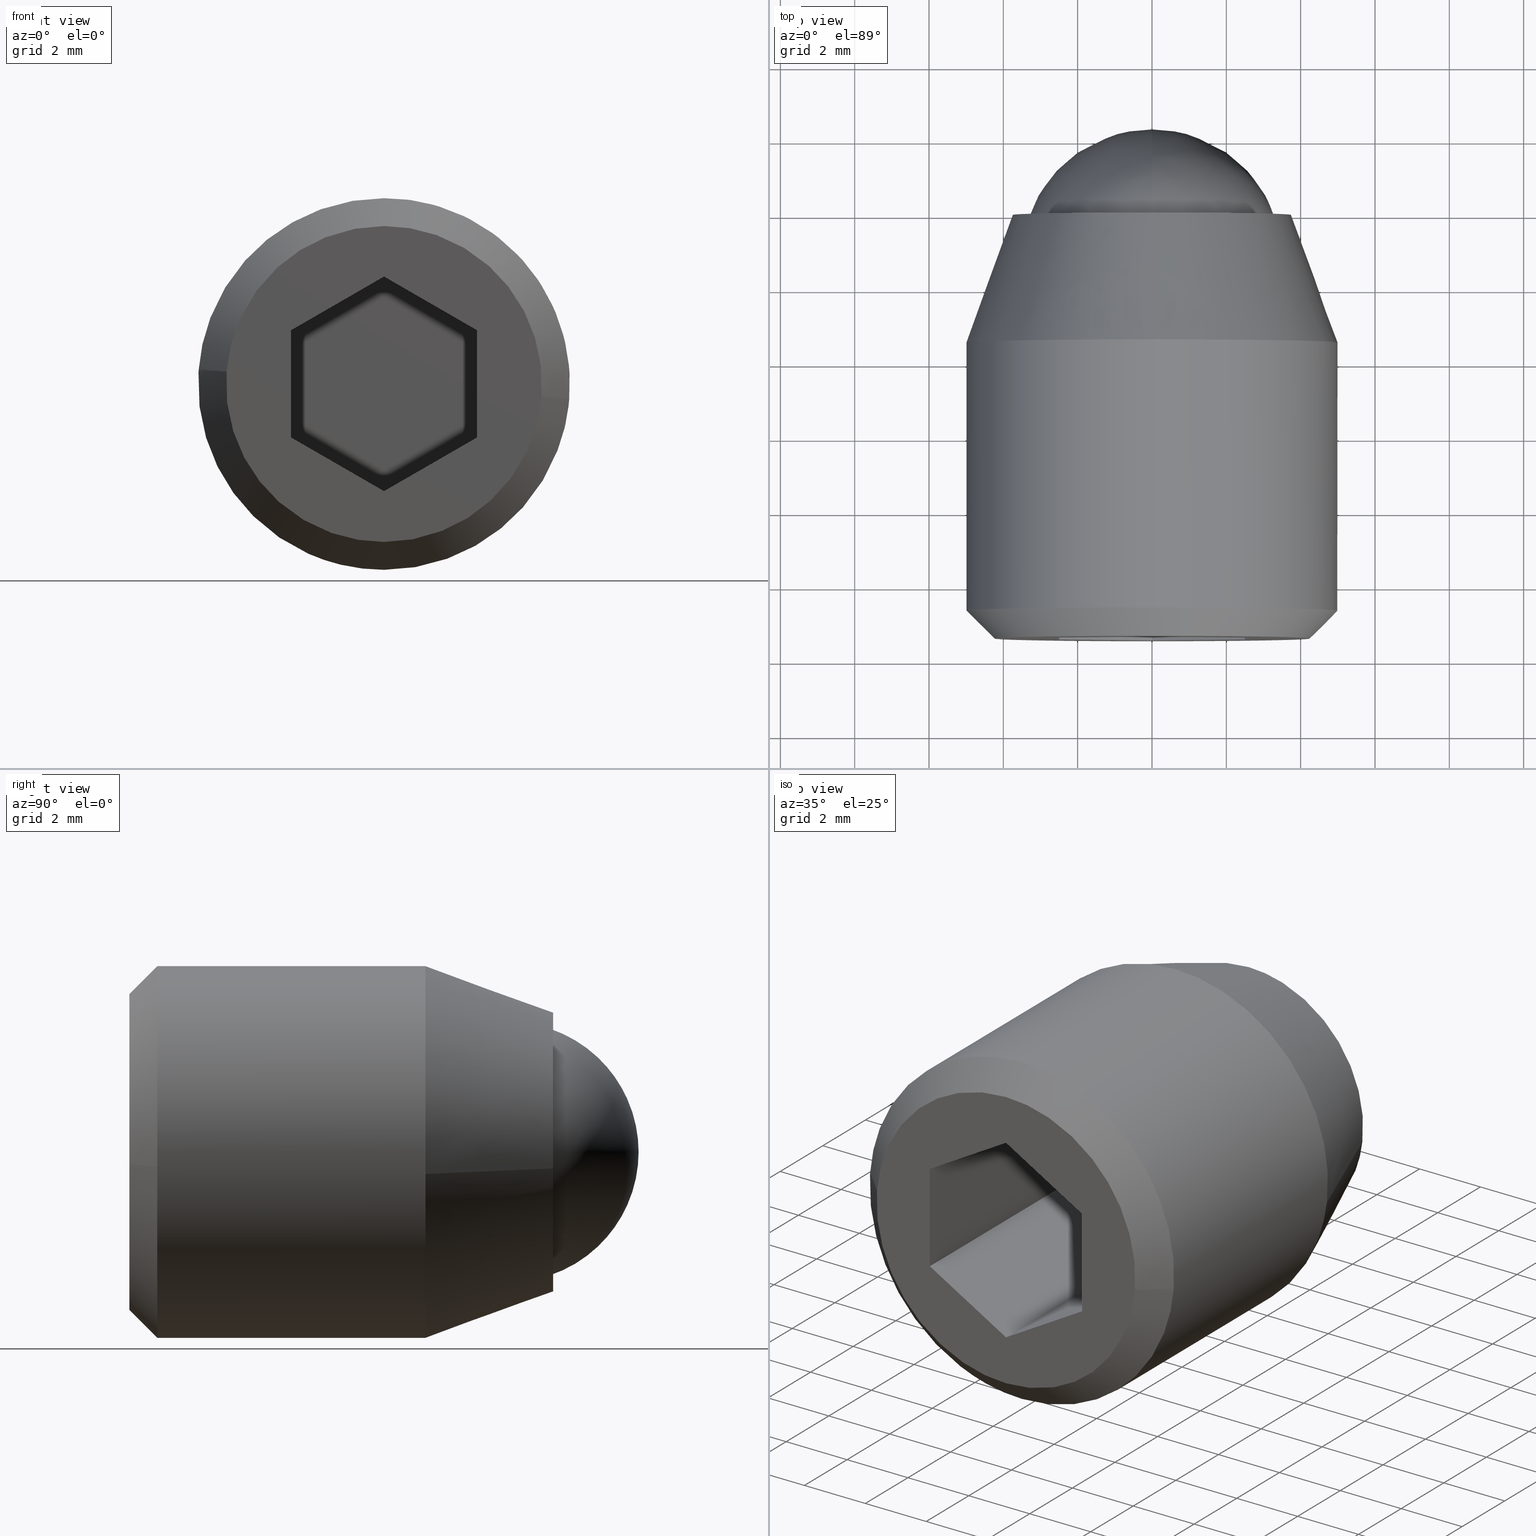
[diagram: canonical four-view strip — front | top / right | iso, engineering-drawing reading convention]
A machine part, canonical four-view strip (front | top / right | iso — engineering-drawing reading convention). The complete STEP part file that produces these views, byte-faithful:
ISO-10303-21;
HEADER;
/****************************************************************
 * Generated by software with PDE/Lib inside                    *
 * PDElib Version 4.4.1-0003, patched  Thursday August 19 11:58 *
 * International Technegroup Inc. (www.iti-oh.com)              *
 ****************************************************************/
FILE_DESCRIPTION((''),'2;1');
FILE_NAME('','2005-07-15T11:32:46',(''),(''),'','CADfix','');
FILE_SCHEMA(('AUTOMOTIVE_DESIGN'));
ENDSEC;
DATA;
#5=APPLICATION_CONTEXT('automotive design');
#6=APPLICATION_PROTOCOL_DEFINITION('Draft International Standard','automotive_design',1998,#5);
#7=PRODUCT_CONTEXT('None',#5,'mechanical');
#8=PRODUCT('body','','None',(#7));
#9=PRODUCT_RELATED_PRODUCT_CATEGORY('part','description',(#8));
#10=PRODUCT_DEFINITION_FORMATION('None','None',#8);
#11=PRODUCT_DEFINITION_CONTEXT('part definition',#5,'design');
#12=PRODUCT_DEFINITION('None','None',#10,#11);
#18=(NAMED_UNIT(*)PLANE_ANGLE_UNIT()SI_UNIT($,.RADIAN.));
#19=DIMENSIONAL_EXPONENTS(0.0,0.0,0.0,0.0,0.0,0.0,0.0);
#20=PLANE_ANGLE_MEASURE_WITH_UNIT(PLANE_ANGLE_MEASURE(0.017453292500000),#18);
#24=(CONVERSION_BASED_UNIT('DEGREE',#20)NAMED_UNIT(#19)PLANE_ANGLE_UNIT());
#28=(NAMED_UNIT(*)SI_UNIT($,.STERADIAN.)SOLID_ANGLE_UNIT());
#32=(LENGTH_UNIT()NAMED_UNIT(*)SI_UNIT(.MILLI.,.METRE.));
#34=UNCERTAINTY_MEASURE_WITH_UNIT(LENGTH_MEASURE(0.001000000000000),#32,'DISTANCE_ACCURACY_VALUE','');
#36=(GEOMETRIC_REPRESENTATION_CONTEXT(3)GLOBAL_UNCERTAINTY_ASSIGNED_CONTEXT((#34))GLOBAL_UNIT_ASSIGNED_CONTEXT((#24,#28,#32))REPRESENTATION_CONTEXT('None','None'));
#37=AXIS2_PLACEMENT_3D('',#38,#39,#40);
#38=CARTESIAN_POINT('',(0.0,0.0,0.0));
#39=DIRECTION('',(0.0,0.0,1.0));
#40=DIRECTION('',(1.0,0.0,0.0));
#41=ADVANCED_BREP_SHAPE_REPRESENTATION('',(#37,#945,#1156),#36);
#42=PRODUCT_DEFINITION_SHAPE('','',#12);
#43=SHAPE_DEFINITION_REPRESENTATION(#42,#41);
#44=CARTESIAN_POINT('',(-3.475533342272832,0.125000000000000,0.413119821298655));
#45=CARTESIAN_POINT('',(-3.487356654070120,0.125000000000000,0.313651550232922));
#46=CARTESIAN_POINT('',(-3.493471794476533,0.125000000000000,0.213669888371999));
#47=CARTESIAN_POINT('',(-3.707141682848533,0.125000000000000,-3.279801906104533));
#48=CARTESIAN_POINT('',(-0.213669888371999,0.125000000000000,-3.493471794476533));
#49=CARTESIAN_POINT('',(3.279801906104533,0.125000000000000,-3.707141682848533));
#50=CARTESIAN_POINT('',(3.493471794476533,0.125000000000000,-0.213669888371999));
#51=CARTESIAN_POINT('',(-3.475533342272832,-5.128125000000002,0.413119821298655));
#52=CARTESIAN_POINT('',(-3.487356654070120,-5.128125000000001,0.313651550232922));
#53=CARTESIAN_POINT('',(-3.493471794476533,-5.128125000000001,0.213669888371999));
#54=CARTESIAN_POINT('',(-3.707141682848533,-5.128125000000001,-3.279801906104533));
#55=CARTESIAN_POINT('',(-0.213669888371999,-5.128125000000001,-3.493471794476533));
#56=CARTESIAN_POINT('',(3.279801906104533,-5.128125000000001,-3.707141682848533));
#57=CARTESIAN_POINT('',(3.493471794476533,-5.128125000000001,-0.213669888371999));
#65=(BOUNDED_SURFACE()B_SPLINE_SURFACE(2,1,((#44,#51),(#45,#52),(#46,#53),(#47,#54),(#48,#55),(#49,#56),(#50,#57)),.UNSPECIFIED.,.F.,.F.,.U.)B_SPLINE_SURFACE_WITH_KNOTS((3,2,2,3),(2,2),(0.0,0.231959594928934,6.030949468152262,11.829939341375590),(0.0,5.253125000000002),.UNSPECIFIED.)GEOMETRIC_REPRESENTATION_ITEM()RATIONAL_B_SPLINE_SURFACE(((0.977505800795127,0.977505800795127),(0.988284271247462,0.988284271247462),(1.0,1.0),(0.707106781186548,0.707106781186548),(1.0,1.0),(0.707106781186548,0.707106781186548),(1.0,1.0)))REPRESENTATION_ITEM('')SURFACE());
#66=CARTESIAN_POINT('',(-3.475533787910202,-4.999999999999991,0.413116072164112));
#67=VERTEX_POINT('',#66);
#68=CARTESIAN_POINT('',(0.0,-5.0,-3.500000000000000));
#69=VERTEX_POINT('',#68);
#70=CARTESIAN_POINT('',(-3.475533787910203,-4.999999999999991,0.413116072164112));
#71=CARTESIAN_POINT('',(-3.500000000000000,-5.0,0.207282524397032));
#72=CARTESIAN_POINT('',(-3.500000000000000,-5.0,0.0));
#73=CARTESIAN_POINT('',(-3.500000000000000,-4.999999999999999,-3.500000000000000));
#74=CARTESIAN_POINT('',(0.0,-5.0,-3.500000000000000));
#82=(BOUNDED_CURVE()B_SPLINE_CURVE(2,(#70,#71,#72,#73,#74),.UNSPECIFIED.,.F.,.U.)B_SPLINE_CURVE_WITH_KNOTS((3,2,3),(0.229562655823192,0.250000000000000,0.500000000000000),.UNSPECIFIED.)CURVE()GEOMETRIC_REPRESENTATION_ITEM()RATIONAL_B_SPLINE_CURVE((0.956027111518451,0.976056161920225,1.0,0.707106781186547,1.0))REPRESENTATION_ITEM(''));
#83=EDGE_CURVE('',#67,#69,#82,.T.);
#84=ORIENTED_EDGE('',*,*,#83,.T.);
#85=CARTESIAN_POINT('',(3.493472062745797,-5.000000000000002,-0.213665502117946));
#86=VERTEX_POINT('',#85);
#87=CARTESIAN_POINT('',(0.0,-5.0,-3.500000000000000));
#88=CARTESIAN_POINT('',(3.292475375783329,-5.000000000000001,-3.499999999999999));
#89=CARTESIAN_POINT('',(3.493472062745797,-5.000000000000002,-0.213665502117946));
#97=(BOUNDED_CURVE()B_SPLINE_CURVE(2,(#87,#88,#89),.UNSPECIFIED.,.F.,.U.)B_SPLINE_CURVE_WITH_KNOTS((3,3),(0.500000000000000,0.739333178884387),.UNSPECIFIED.)CURVE()GEOMETRIC_REPRESENTATION_ITEM()RATIONAL_B_SPLINE_CURVE((1.0,0.719603739470784,0.976072505979584))REPRESENTATION_ITEM(''));
#98=EDGE_CURVE('',#69,#86,#97,.T.);
#99=ORIENTED_EDGE('',*,*,#98,.T.);
#100=CARTESIAN_POINT('',(3.493472059435628,-1.110223E-016,-0.213665556240952));
#101=VERTEX_POINT('',#100);
#102=CARTESIAN_POINT('',(3.493472059435628,-1.110223E-016,-0.213665556240952));
#103=CARTESIAN_POINT('',(3.493472062745797,-5.000000000000002,-0.213665502117946));
#104=QUASI_UNIFORM_CURVE('',1,(#102,#103),.UNSPECIFIED.,.F.,.U.);
#105=EDGE_CURVE('',#101,#86,#104,.T.);
#106=ORIENTED_EDGE('',*,*,#105,.F.);
#107=CARTESIAN_POINT('',(0.0,0.0,-3.500000000000000));
#108=VERTEX_POINT('',#107);
#109=CARTESIAN_POINT('',(0.0,0.0,-3.500000000000000));
#110=CARTESIAN_POINT('',(3.292475324678975,0.0,-3.500000000000000));
#111=CARTESIAN_POINT('',(3.493472059435628,-1.110223E-016,-0.213665556240953));
#119=(BOUNDED_CURVE()B_SPLINE_CURVE(2,(#109,#110,#111),.UNSPECIFIED.,.F.,.U.)B_SPLINE_CURVE_WITH_KNOTS((3,3),(0.500000000000000,0.739333176211185),.UNSPECIFIED.)CURVE()GEOMETRIC_REPRESENTATION_ITEM()RATIONAL_B_SPLINE_CURVE((1.0,0.719603742602635,0.976072500250393))REPRESENTATION_ITEM(''));
#120=EDGE_CURVE('',#108,#101,#119,.T.);
#121=ORIENTED_EDGE('',*,*,#120,.F.);
#122=CARTESIAN_POINT('',(-3.475533782414077,-1.135771E-016,0.413116118403281));
#123=VERTEX_POINT('',#122);
#124=CARTESIAN_POINT('',(-3.475533782414076,-1.135771E-016,0.413116118403281));
#125=CARTESIAN_POINT('',(-3.500000000000000,0.0,0.207282547761025));
#126=CARTESIAN_POINT('',(-3.500000000000000,0.0,0.0));
#127=CARTESIAN_POINT('',(-3.500000000000000,0.0,-3.500000000000000));
#128=CARTESIAN_POINT('',(0.0,0.0,-3.500000000000000));
#136=(BOUNDED_CURVE()B_SPLINE_CURVE(2,(#124,#125,#126,#127,#128),.UNSPECIFIED.,.F.,.U.)B_SPLINE_CURVE_WITH_KNOTS((3,2,3),(0.229562653574740,0.250000000000000,0.500000000000000),.UNSPECIFIED.)CURVE()GEOMETRIC_REPRESENTATION_ITEM()RATIONAL_B_SPLINE_CURVE((0.956027107111385,0.976056159286000,1.0,0.707106781186547,1.0))REPRESENTATION_ITEM(''));
#137=EDGE_CURVE('',#123,#108,#136,.T.);
#138=ORIENTED_EDGE('',*,*,#137,.F.);
#139=CARTESIAN_POINT('',(-3.475533782414077,-1.135771E-016,0.413116118403281));
#140=CARTESIAN_POINT('',(-3.475533787910202,-4.999999999999991,0.413116072164112));
#141=QUASI_UNIFORM_CURVE('',1,(#139,#140),.UNSPECIFIED.,.F.,.U.);
#142=EDGE_CURVE('',#123,#67,#141,.T.);
#143=ORIENTED_EDGE('',*,*,#142,.T.);
#144=EDGE_LOOP('',(#84,#99,#106,#121,#138,#143));
#145=FACE_OUTER_BOUND('',#144,.T.);
#146=ADVANCED_FACE('',(#145),#65,.F.);
#147=CARTESIAN_POINT('',(3.493471794476533,0.125000000000000,-0.213669888371999));
#148=CARTESIAN_POINT('',(3.707141682848533,0.125000000000000,3.279801906104533));
#149=CARTESIAN_POINT('',(0.213669888371999,0.125000000000000,3.493471794476533));
#150=CARTESIAN_POINT('',(-3.085402217938253,0.125000000000000,3.695251688563845));
#151=CARTESIAN_POINT('',(-3.475533342272832,0.125000000000000,0.413119821298655));
#152=CARTESIAN_POINT('',(3.493471794476533,-5.128125000000001,-0.213669888371999));
#153=CARTESIAN_POINT('',(3.707141682848533,-5.128125000000001,3.279801906104533));
#154=CARTESIAN_POINT('',(0.213669888371999,-5.128125000000001,3.493471794476533));
#155=CARTESIAN_POINT('',(-3.085402217938253,-5.128125000000000,3.695251688563845));
#156=CARTESIAN_POINT('',(-3.475533342272832,-5.128125000000002,0.413119821298655));
#164=(BOUNDED_SURFACE()B_SPLINE_SURFACE(2,1,((#147,#152),(#148,#153),(#149,#154),(#150,#155),(#151,#156)),.UNSPECIFIED.,.F.,.F.,.U.)B_SPLINE_SURFACE_WITH_KNOTS((3,2,3),(2,2),(0.0,5.798989873223329,11.366020151517720),(0.0,5.253125000000002),.UNSPECIFIED.)GEOMETRIC_REPRESENTATION_ITEM()RATIONAL_B_SPLINE_SURFACE(((1.0,1.0),(0.707106781186548,0.707106781186548),(1.0,1.0),(0.718822509939086,0.718822509939086),(0.977505800795127,0.977505800795127)))REPRESENTATION_ITEM('')SURFACE());
#165=CARTESIAN_POINT('',(0.0,-5.0,3.500000000000000));
#166=VERTEX_POINT('',#165);
#167=CARTESIAN_POINT('',(0.0,-5.0,3.500000000000000));
#168=CARTESIAN_POINT('',(-3.108614217764476,-4.999999999999999,3.500000000000000));
#169=CARTESIAN_POINT('',(-3.475533787910203,-4.999999999999991,0.413116072164112));
#177=(BOUNDED_CURVE()B_SPLINE_CURVE(2,(#167,#168,#169),.UNSPECIFIED.,.F.,.U.)B_SPLINE_CURVE_WITH_KNOTS((3,3),(0.0,0.229562655823192),.UNSPECIFIED.)CURVE()GEOMETRIC_REPRESENTATION_ITEM()RATIONAL_B_SPLINE_CURVE((1.0,0.731050619266322,0.956027111518451))REPRESENTATION_ITEM(''));
#178=EDGE_CURVE('',#166,#67,#177,.T.);
#179=ORIENTED_EDGE('',*,*,#178,.T.);
#180=ORIENTED_EDGE('',*,*,#142,.F.);
#181=CARTESIAN_POINT('',(0.0,0.0,3.500000000000000));
#182=VERTEX_POINT('',#181);
#183=CARTESIAN_POINT('',(0.0,0.0,3.500000000000000));
#184=CARTESIAN_POINT('',(-3.108614176115741,0.0,3.499999999999999));
#185=CARTESIAN_POINT('',(-3.475533782414076,-1.135771E-016,0.413116118403281));
#193=(BOUNDED_CURVE()B_SPLINE_CURVE(2,(#183,#184,#185),.UNSPECIFIED.,.F.,.U.)B_SPLINE_CURVE_WITH_KNOTS((3,3),(0.0,0.229562653574740),.UNSPECIFIED.)CURVE()GEOMETRIC_REPRESENTATION_ITEM()RATIONAL_B_SPLINE_CURVE((1.0,0.731050621900548,0.956027107111385))REPRESENTATION_ITEM(''));
#194=EDGE_CURVE('',#182,#123,#193,.T.);
#195=ORIENTED_EDGE('',*,*,#194,.F.);
#196=CARTESIAN_POINT('',(3.493472059435628,-1.110223E-016,-0.213665556240953));
#197=CARTESIAN_POINT('',(3.500000000000000,0.0,-0.106932499406306));
#198=CARTESIAN_POINT('',(3.500000000000000,0.0,0.0));
#199=CARTESIAN_POINT('',(3.500000000000000,0.0,3.500000000000000));
#200=CARTESIAN_POINT('',(0.0,0.0,3.500000000000000));
#208=(BOUNDED_CURVE()B_SPLINE_CURVE(2,(#196,#197,#198,#199,#200),.UNSPECIFIED.,.F.,.U.)B_SPLINE_CURVE_WITH_KNOTS((3,2,3),(0.739333176211185,0.750000000000000,1.0),.UNSPECIFIED.)CURVE()GEOMETRIC_REPRESENTATION_ITEM()RATIONAL_B_SPLINE_CURVE((0.976072500250393,0.987503038583913,1.0,0.707106781186547,1.0))REPRESENTATION_ITEM(''));
#209=EDGE_CURVE('',#101,#182,#208,.T.);
#210=ORIENTED_EDGE('',*,*,#209,.F.);
#211=ORIENTED_EDGE('',*,*,#105,.T.);
#212=CARTESIAN_POINT('',(3.493472062745797,-5.000000000000002,-0.213665502117946));
#213=CARTESIAN_POINT('',(3.500000000000000,-4.999999999999999,-0.106932472268931));
#214=CARTESIAN_POINT('',(3.500000000000000,-5.0,0.0));
#215=CARTESIAN_POINT('',(3.500000000000000,-4.999999999999999,3.500000000000000));
#216=CARTESIAN_POINT('',(0.0,-5.0,3.500000000000000));
#224=(BOUNDED_CURVE()B_SPLINE_CURVE(2,(#212,#213,#214,#215,#216),.UNSPECIFIED.,.F.,.U.)B_SPLINE_CURVE_WITH_KNOTS((3,2,3),(0.739333178884387,0.750000000000000,1.0),.UNSPECIFIED.)CURVE()GEOMETRIC_REPRESENTATION_ITEM()RATIONAL_B_SPLINE_CURVE((0.976072505979584,0.987503041715763,1.0,0.707106781186547,1.0))REPRESENTATION_ITEM(''));
#225=EDGE_CURVE('',#86,#166,#224,.T.);
#226=ORIENTED_EDGE('',*,*,#225,.T.);
#227=EDGE_LOOP('',(#179,#180,#195,#210,#211,#226));
#228=FACE_OUTER_BOUND('',#227,.T.);
#229=ADVANCED_FACE('',(#228),#164,.F.);
#230=CARTESIAN_POINT('',(-1.171618069925067,-3.253955675000000,-4.860793258124136));
#231=CARTESIAN_POINT('',(-0.744141485831303,-3.253955674999999,-4.963829792244778));
#232=CARTESIAN_POINT('',(-0.305242697674285,-3.253955674999999,-4.990673992109334));
#233=CARTESIAN_POINT('',(4.685431294435048,-3.253955674999999,-5.295916689783620));
#234=CARTESIAN_POINT('',(4.990673992109334,-3.253955674999999,-0.305242697674286));
#235=CARTESIAN_POINT('',(5.295916689783620,-3.253955674999999,4.685431294435048));
#236=CARTESIAN_POINT('',(0.305242697674285,-3.253955674999999,4.990673992109333));
#237=CARTESIAN_POINT('',(-4.685431294435048,-3.253955674999999,5.295916689783618));
#238=CARTESIAN_POINT('',(-4.990673992109334,-3.253955674999999,0.305242697674284));
#239=CARTESIAN_POINT('',(-1.171618069925067,-10.834901108125008,-4.860793258124136));
#240=CARTESIAN_POINT('',(-0.744141485831303,-10.834901108125001,-4.963829792244778));
#241=CARTESIAN_POINT('',(-0.305242697674285,-10.834901108125001,-4.990673992109334));
#242=CARTESIAN_POINT('',(4.685431294435048,-10.834901108125003,-5.295916689783620));
#243=CARTESIAN_POINT('',(4.990673992109334,-10.834901108125001,-0.305242697674286));
#244=CARTESIAN_POINT('',(5.295916689783620,-10.834901108125003,4.685431294435048));
#245=CARTESIAN_POINT('',(0.305242697674285,-10.834901108125001,4.990673992109333));
#246=CARTESIAN_POINT('',(-4.685431294435048,-10.834901108125003,5.295916689783618));
#247=CARTESIAN_POINT('',(-4.990673992109334,-10.834901108125001,0.305242697674284));
#255=(BOUNDED_SURFACE()B_SPLINE_SURFACE(2,1,((#230,#239),(#231,#240),(#232,#241),(#233,#242),(#234,#243),(#235,#244),(#236,#245),(#237,#246),(#238,#247)),.UNSPECIFIED.,.F.,.F.,.U.)B_SPLINE_SURFACE_WITH_KNOTS((3,2,2,2,3),(2,2),(0.0,0.994112549695428,9.278383797157327,17.562655044619220,25.846926292081129),(0.0,7.580945433125004),.UNSPECIFIED.)GEOMETRIC_REPRESENTATION_ITEM()RATIONAL_B_SPLINE_SURFACE(((0.938140952186599,0.938140952186599),(0.964852813742386,0.964852813742386),(1.0,1.0),(0.707106781186548,0.707106781186548),(1.0,1.0),(0.707106781186548,0.707106781186548),(1.0,1.0),(0.707106781186548,0.707106781186548),(1.0,1.0)))REPRESENTATION_ITEM('')SURFACE());
#256=CARTESIAN_POINT('',(-1.171615753951384,-10.650000000000000,-4.860793816352145));
#257=VERTEX_POINT('',#256);
#258=CARTESIAN_POINT('',(0.0,-10.650000000000000,-5.000000000000001));
#259=VERTEX_POINT('',#258);
#260=CARTESIAN_POINT('',(-1.171615753951385,-10.649999999999999,-4.860793816352145));
#261=CARTESIAN_POINT('',(-0.594077807411693,-10.650000000000002,-5.000000000000001));
#262=CARTESIAN_POINT('',(0.0,-10.650000000000000,-5.000000000000001));
#270=(BOUNDED_CURVE()B_SPLINE_CURVE(2,(#260,#261,#262),.UNSPECIFIED.,.F.,.U.)B_SPLINE_CURVE_WITH_KNOTS((3,3),(0.959962787477101,1.0),.UNSPECIFIED.)CURVE()GEOMETRIC_REPRESENTATION_ITEM()RATIONAL_B_SPLINE_CURVE((0.921211023593703,0.953093487807399,1.0))REPRESENTATION_ITEM(''));
#271=EDGE_CURVE('',#257,#259,#270,.T.);
#272=ORIENTED_EDGE('',*,*,#271,.F.);
#273=CARTESIAN_POINT('',(-1.171615782511262,-3.434347000000000,-4.860793809468262));
#274=VERTEX_POINT('',#273);
#275=CARTESIAN_POINT('',(-1.171615782511262,-3.434347000000000,-4.860793809468262));
#276=CARTESIAN_POINT('',(-1.171615753951384,-10.650000000000000,-4.860793816352145));
#277=QUASI_UNIFORM_CURVE('',1,(#275,#276),.UNSPECIFIED.,.F.,.U.);
#278=EDGE_CURVE('',#274,#257,#277,.T.);
#279=ORIENTED_EDGE('',*,*,#278,.F.);
#280=CARTESIAN_POINT('',(0.0,-3.434347000000000,-5.000000000000001));
#281=VERTEX_POINT('',#280);
#282=CARTESIAN_POINT('',(-1.171615782511262,-3.434347000000000,-4.860793809468262));
#283=CARTESIAN_POINT('',(-0.594077822307952,-3.434347000000000,-5.000000000000001));
#284=CARTESIAN_POINT('',(0.0,-3.434347000000000,-5.000000000000001));
#292=(BOUNDED_CURVE()B_SPLINE_CURVE(2,(#282,#283,#284),.UNSPECIFIED.,.F.,.U.)B_SPLINE_CURVE_WITH_KNOTS((3,3),(0.959962786520274,1.0),.UNSPECIFIED.)CURVE()GEOMETRIC_REPRESENTATION_ITEM()RATIONAL_B_SPLINE_CURVE((0.921211022069821,0.953093486686407,1.0))REPRESENTATION_ITEM(''));
#293=EDGE_CURVE('',#274,#281,#292,.T.);
#294=ORIENTED_EDGE('',*,*,#293,.T.);
#295=CARTESIAN_POINT('',(4.965046728884618,-3.434343137729694,-0.590166859848394));
#296=VERTEX_POINT('',#295);
#297=CARTESIAN_POINT('',(0.0,-3.434347000000000,-5.000000000000001));
#298=CARTESIAN_POINT('',(4.440875667554118,-3.434345068864847,-4.999999917037090));
#299=CARTESIAN_POINT('',(4.965046728884618,-3.434343137729695,-0.590166859848394));
#307=(BOUNDED_CURVE()B_SPLINE_CURVE(2,(#297,#298,#299),.UNSPECIFIED.,.F.,.U.)B_SPLINE_CURVE_WITH_KNOTS((3,3),(0.0,0.229562614691060),.UNSPECIFIED.)CURVE()GEOMETRIC_REPRESENTATION_ITEM()RATIONAL_B_SPLINE_CURVE((1.0,0.731050667455612,0.956027030897666))REPRESENTATION_ITEM(''));
#308=EDGE_CURVE('',#281,#296,#307,.T.);
#309=ORIENTED_EDGE('',*,*,#308,.T.);
#310=CARTESIAN_POINT('',(0.0,-3.434347000000000,4.999999999999999));
#311=VERTEX_POINT('',#310);
#312=CARTESIAN_POINT('',(4.965046728884618,-3.434343137729695,-0.590166859848394));
#313=CARTESIAN_POINT('',(4.999998640787238,-3.434343239309385,-0.296118341019559));
#314=CARTESIAN_POINT('',(4.999998682123200,-3.434343353678355,0.000000156648517));
#315=CARTESIAN_POINT('',(4.999999380086369,-3.434345284813507,5.000000073685605));
#316=CARTESIAN_POINT('',(0.0,-3.434347000000000,4.999999999999999));
#324=(BOUNDED_CURVE()B_SPLINE_CURVE(2,(#312,#313,#314,#315,#316),.UNSPECIFIED.,.F.,.U.)B_SPLINE_CURVE_WITH_KNOTS((3,2,3),(0.229562614691060,0.250000000000000,0.500000000000000),.UNSPECIFIED.)CURVE()GEOMETRIC_REPRESENTATION_ITEM()RATIONAL_B_SPLINE_CURVE((0.956027030897666,0.976056113730936,1.0,0.707106781186548,1.0))REPRESENTATION_ITEM(''));
#325=EDGE_CURVE('',#296,#311,#324,.T.);
#326=ORIENTED_EDGE('',*,*,#325,.T.);
#327=CARTESIAN_POINT('',(-4.990673676557385,-3.434344828327391,0.305241382882670));
#328=VERTEX_POINT('',#327);
#329=CARTESIAN_POINT('',(0.0,-3.434347000000000,4.999999999999999));
#330=CARTESIAN_POINT('',(-4.703531355959481,-3.434345914163695,4.999999987935962));
#331=CARTESIAN_POINT('',(-4.990673676557386,-3.434344828327392,0.305241382882670));
#339=(BOUNDED_CURVE()B_SPLINE_CURVE(2,(#329,#330,#331),.UNSPECIFIED.,.F.,.U.)B_SPLINE_CURVE_WITH_KNOTS((3,3),(0.500000000000000,0.739333006865172),.UNSPECIFIED.)CURVE()GEOMETRIC_REPRESENTATION_ITEM()RATIONAL_B_SPLINE_CURVE((1.0,0.719603941003831,0.976072137309239))REPRESENTATION_ITEM(''));
#340=EDGE_CURVE('',#311,#328,#339,.T.);
#341=ORIENTED_EDGE('',*,*,#340,.T.);
#342=CARTESIAN_POINT('',(-4.990674017282300,-10.650000000000000,0.305242286099373));
#343=VERTEX_POINT('',#342);
#344=CARTESIAN_POINT('',(-4.990673676557385,-3.434344828327391,0.305241382882670));
#345=CARTESIAN_POINT('',(-4.990674017282300,-10.650000000000000,0.305242286099373));
#346=QUASI_UNIFORM_CURVE('',1,(#344,#345),.UNSPECIFIED.,.F.,.U.);
#347=EDGE_CURVE('',#328,#343,#346,.T.);
#348=ORIENTED_EDGE('',*,*,#347,.T.);
#349=CARTESIAN_POINT('',(-4.984586668665658,-10.649999999999951,0.392295478639601));
#350=VERTEX_POINT('',#349);
#351=CARTESIAN_POINT('',(-4.984586668665658,-10.649999999999951,0.392295478639601));
#352=CARTESIAN_POINT('',(-4.988010211797215,-10.649999999999995,0.348795238686368));
#353=CARTESIAN_POINT('',(-4.990674017282301,-10.650000000000006,0.305242286099373));
#361=(BOUNDED_CURVE()B_SPLINE_CURVE(2,(#351,#352,#353),.UNSPECIFIED.,.F.,.U.)B_SPLINE_CURVE_WITH_KNOTS((3,3),(0.736331300632741,0.739332990701424),.UNSPECIFIED.)CURVE()GEOMETRIC_REPRESENTATION_ITEM()RATIONAL_B_SPLINE_CURVE((0.969723356171762,0.972855505261679,0.976072102667240))REPRESENTATION_ITEM(''));
#362=EDGE_CURVE('',#350,#343,#361,.T.);
#363=ORIENTED_EDGE('',*,*,#362,.F.);
#364=CARTESIAN_POINT('',(0.0,-10.650000000000000,4.999999999999999));
#365=VERTEX_POINT('',#364);
#366=CARTESIAN_POINT('',(0.0,-10.650000000000000,4.999999999999999));
#367=CARTESIAN_POINT('',(-4.621952458290354,-10.650000000000002,5.0));
#368=CARTESIAN_POINT('',(-4.984586668665658,-10.649999999999954,0.392295478639601));
#376=(BOUNDED_CURVE()B_SPLINE_CURVE(2,(#366,#367,#368),.UNSPECIFIED.,.F.,.U.)B_SPLINE_CURVE_WITH_KNOTS((3,3),(0.500000000000000,0.736331300632742),.UNSPECIFIED.)CURVE()GEOMETRIC_REPRESENTATION_ITEM()RATIONAL_B_SPLINE_CURVE((1.0,0.723120658605226,0.969723356171763))REPRESENTATION_ITEM(''));
#377=EDGE_CURVE('',#365,#350,#376,.T.);
#378=ORIENTED_EDGE('',*,*,#377,.F.);
#379=CARTESIAN_POINT('',(4.984586668665658,-10.649999999999951,-0.392295478639601));
#380=VERTEX_POINT('',#379);
#381=CARTESIAN_POINT('',(4.984586668665658,-10.649999999999951,-0.392295478639601));
#382=CARTESIAN_POINT('',(5.000000000000001,-10.650000000000002,-0.196450535038721));
#383=CARTESIAN_POINT('',(5.0,-10.650000000000000,-7.898711E-016));
#384=CARTESIAN_POINT('',(5.000000000000001,-10.650000000000000,4.999999999999998));
#385=CARTESIAN_POINT('',(0.0,-10.650000000000000,4.999999999999999));
#393=(BOUNDED_CURVE()B_SPLINE_CURVE(2,(#381,#382,#383,#384,#385),.UNSPECIFIED.,.F.,.U.)B_SPLINE_CURVE_WITH_KNOTS((3,2,3),(0.236331300632741,0.250000000000000,0.500000000000000),.UNSPECIFIED.)CURVE()GEOMETRIC_REPRESENTATION_ITEM()RATIONAL_B_SPLINE_CURVE((0.969723356171762,0.983986122581321,1.0,0.707106781186548,1.0))REPRESENTATION_ITEM(''));
#394=EDGE_CURVE('',#380,#365,#393,.T.);
#395=ORIENTED_EDGE('',*,*,#394,.F.);
#396=CARTESIAN_POINT('',(0.0,-10.650000000000000,-5.000000000000001));
#397=CARTESIAN_POINT('',(4.621952458290349,-10.650000000000000,-5.0));
#398=CARTESIAN_POINT('',(4.984586668665658,-10.649999999999949,-0.392295478639601));
#406=(BOUNDED_CURVE()B_SPLINE_CURVE(2,(#396,#397,#398),.UNSPECIFIED.,.F.,.U.)B_SPLINE_CURVE_WITH_KNOTS((3,3),(0.0,0.236331300632741),.UNSPECIFIED.)CURVE()GEOMETRIC_REPRESENTATION_ITEM()RATIONAL_B_SPLINE_CURVE((1.0,0.723120658605227,0.969723356171762))REPRESENTATION_ITEM(''));
#407=EDGE_CURVE('',#259,#380,#406,.T.);
#408=ORIENTED_EDGE('',*,*,#407,.F.);
#409=EDGE_LOOP('',(#272,#279,#294,#309,#326,#341,#348,#363,#378,#395,#408));
#410=FACE_OUTER_BOUND('',#409,.T.);
#411=ADVANCED_FACE('',(#410),#255,.T.);
#412=CARTESIAN_POINT('',(-4.990673992109334,-3.253955674999999,0.305242697674284));
#413=CARTESIAN_POINT('',(-5.246568184652631,-3.253955675000001,-3.878590367581841));
#414=CARTESIAN_POINT('',(-1.171618069925067,-3.253955675000000,-4.860793258124136));
#415=CARTESIAN_POINT('',(-4.990673992109334,-10.834901108125001,0.305242697674284));
#416=CARTESIAN_POINT('',(-5.246568184652631,-10.834901108125003,-3.878590367581841));
#417=CARTESIAN_POINT('',(-1.171618069925067,-10.834901108125008,-4.860793258124136));
#425=(BOUNDED_SURFACE()B_SPLINE_SURFACE(2,1,((#412,#415),(#413,#416),(#414,#417)),.UNSPECIFIED.,.F.,.F.,.U.)B_SPLINE_SURFACE_WITH_KNOTS((3,3),(2,2),(0.0,7.272191661774047),(0.0,7.580945433125004),.UNSPECIFIED.)GEOMETRIC_REPRESENTATION_ITEM()RATIONAL_B_SPLINE_SURFACE(((1.0,1.0),(0.742253967444162,0.742253967444162),(0.938140952186599,0.938140952186599)))REPRESENTATION_ITEM('')SURFACE());
#426=CARTESIAN_POINT('',(-4.990674017282300,-10.650000000000000,0.305242286099373));
#427=CARTESIAN_POINT('',(-5.000000000000001,-10.650000000000004,0.152763403764020));
#428=CARTESIAN_POINT('',(-5.0,-10.650000000000000,-7.898711E-016));
#429=CARTESIAN_POINT('',(-4.999999999999999,-10.650000000000002,-3.938023696015475));
#430=CARTESIAN_POINT('',(-1.171615753951385,-10.649999999999999,-4.860793816352145));
#438=(BOUNDED_CURVE()B_SPLINE_CURVE(2,(#426,#427,#428,#429,#430),.UNSPECIFIED.,.F.,.U.)B_SPLINE_CURVE_WITH_KNOTS((3,2,3),(0.739332990701424,0.750000000000000,0.959962787477101),.UNSPECIFIED.)CURVE()GEOMETRIC_REPRESENTATION_ITEM()RATIONAL_B_SPLINE_CURVE((0.976072102667239,0.987502821245708,1.0,0.754013293379149,0.921211023593703))REPRESENTATION_ITEM(''));
#439=EDGE_CURVE('',#343,#257,#438,.T.);
#440=ORIENTED_EDGE('',*,*,#439,.F.);
#441=ORIENTED_EDGE('',*,*,#347,.F.);
#442=CARTESIAN_POINT('',(-4.990673676557385,-3.434344828327391,0.305241382882670));
#443=CARTESIAN_POINT('',(-4.999999612696410,-3.434344867900281,0.152763145663341));
#444=CARTESIAN_POINT('',(-4.999999620239458,-3.434344909424647,-0.000000023227030));
#445=CARTESIAN_POINT('',(-4.999999814688826,-3.434345979865498,-3.938023683548525));
#446=CARTESIAN_POINT('',(-1.171615782511262,-3.434347000000000,-4.860793809468262));
#454=(BOUNDED_CURVE()B_SPLINE_CURVE(2,(#442,#443,#444,#445,#446),.UNSPECIFIED.,.F.,.U.)B_SPLINE_CURVE_WITH_KNOTS((3,2,3),(0.739333006865172,0.750000000000000,0.959962786520274),.UNSPECIFIED.)CURVE()GEOMETRIC_REPRESENTATION_ITEM()RATIONAL_B_SPLINE_CURVE((0.976072137309240,0.987502840182717,1.0,0.754013294500141,0.921211022069821))REPRESENTATION_ITEM(''));
#455=EDGE_CURVE('',#328,#274,#454,.T.);
#456=ORIENTED_EDGE('',*,*,#455,.T.);
#457=ORIENTED_EDGE('',*,*,#278,.T.);
#458=EDGE_LOOP('',(#440,#441,#456,#457));
#459=FACE_OUTER_BOUND('',#458,.T.);
#460=ADVANCED_FACE('',(#459),#425,.T.);
#461=CARTESIAN_POINT('',(3.692754176164883,0.085858675000000,-0.438939810129821));
#462=CARTESIAN_POINT('',(3.705316444949502,0.085858675000000,-0.333254772122480));
#463=CARTESIAN_POINT('',(3.711813781631317,0.085858675000000,-0.227024256395250));
#464=CARTESIAN_POINT('',(3.938838038026567,0.085858675000000,3.484789525236066));
#465=CARTESIAN_POINT('',(0.227024256395249,0.085858675000000,3.711813781631316));
#466=CARTESIAN_POINT('',(-3.484789525236068,0.085858675000000,3.938838038026566));
#467=CARTESIAN_POINT('',(-3.711813781631317,0.085858675000000,0.227024256395249));
#468=CARTESIAN_POINT('',(4.996854968209667,-3.522352141875001,-0.593951957362642));
#469=CARTESIAN_POINT('',(5.013853618050365,-3.522352141875000,-0.450944114966574));
#470=CARTESIAN_POINT('',(5.022645497371283,-3.522352141875000,-0.307198158706261));
#471=CARTESIAN_POINT('',(5.329843656077543,-3.522352141875000,4.715447338665021));
#472=CARTESIAN_POINT('',(0.307198158706261,-3.522352141875000,5.022645497371282));
#473=CARTESIAN_POINT('',(-4.715447338665021,-3.522352141875000,5.329843656077543));
#474=CARTESIAN_POINT('',(-5.022645497371283,-3.522352141875000,0.307198158706260));
#482=(BOUNDED_SURFACE()B_SPLINE_SURFACE(2,1,((#461,#468),(#462,#469),(#463,#470),(#464,#471),(#465,#472),(#466,#473),(#467,#474)),.UNSPECIFIED.,.F.,.F.,.U.)B_SPLINE_SURFACE_WITH_KNOTS((3,2,2,3),(2,2),(0.0,0.333493694405638,8.670836054546589,17.008178414687539),(0.0,3.839777720209247),.UNSPECIFIED.)GEOMETRIC_REPRESENTATION_ITEM()RATIONAL_B_SPLINE_SURFACE(((0.977505800795127,0.977505800795127),(0.988284271247462,0.988284271247462),(1.0,1.0),(0.707106781186548,0.707106781186548),(1.0,1.0),(0.707106781186548,0.707106781186548),(1.0,1.0)))REPRESENTATION_ITEM('')SURFACE());
#483=ORIENTED_EDGE('',*,*,#325,.F.);
#484=CARTESIAN_POINT('',(3.723785501493592,0.000000950687347,-0.442627319198808));
#485=VERTEX_POINT('',#484);
#486=CARTESIAN_POINT('',(3.723785501493592,0.000000950687347,-0.442627319198808));
#487=CARTESIAN_POINT('',(4.965046728884618,-3.434343137729694,-0.590166859848394));
#488=QUASI_UNIFORM_CURVE('',1,(#486,#487),.UNSPECIFIED.,.F.,.U.);
#489=EDGE_CURVE('',#485,#296,#488,.T.);
#490=ORIENTED_EDGE('',*,*,#489,.F.);
#491=CARTESIAN_POINT('',(0.0,0.0,3.749999999999999));
#492=VERTEX_POINT('',#491);
#493=CARTESIAN_POINT('',(3.723785501493592,0.000000950687347,-0.442627319198808));
#494=CARTESIAN_POINT('',(3.749999665433810,0.000000925683677,-0.222089893574421));
#495=CARTESIAN_POINT('',(3.749999675608583,0.000000897531931,0.000000038558746));
#496=CARTESIAN_POINT('',(3.749999847410168,0.000000422188258,3.750000018137571));
#497=CARTESIAN_POINT('',(0.0,0.0,3.749999999999999));
#505=(BOUNDED_CURVE()B_SPLINE_CURVE(2,(#493,#494,#495,#496,#497),.UNSPECIFIED.,.F.,.U.)B_SPLINE_CURVE_WITH_KNOTS((3,2,3),(0.229562519804582,0.250000000000000,0.500000000000000),.UNSPECIFIED.)CURVE()GEOMETRIC_REPRESENTATION_ITEM()RATIONAL_B_SPLINE_CURVE((0.956026844916118,0.976056002564511,1.0,0.707106781186547,1.0))REPRESENTATION_ITEM(''));
#506=EDGE_CURVE('',#485,#492,#505,.T.);
#507=ORIENTED_EDGE('',*,*,#506,.T.);
#508=CARTESIAN_POINT('',(-3.743004912551026,0.000001996952542,0.228929625386434));
#509=VERTEX_POINT('',#508);
#510=CARTESIAN_POINT('',(0.0,0.0,3.749999999999999));
#511=CARTESIAN_POINT('',(-3.527649610390469,0.000000998476271,3.749999977814210));
#512=CARTESIAN_POINT('',(-3.743004912551026,0.000001996952542,0.228929625386434));
#520=(BOUNDED_CURVE()B_SPLINE_CURVE(2,(#510,#511,#512),.UNSPECIFIED.,.F.,.U.)B_SPLINE_CURVE_WITH_KNOTS((3,3),(0.500000000000000,0.739333070734599),.UNSPECIFIED.)CURVE()GEOMETRIC_REPRESENTATION_ITEM()RATIONAL_B_SPLINE_CURVE((1.0,0.719603866176142,0.976072274193673))REPRESENTATION_ITEM(''));
#521=EDGE_CURVE('',#492,#509,#520,.T.);
#522=ORIENTED_EDGE('',*,*,#521,.T.);
#523=CARTESIAN_POINT('',(-3.743004912551026,0.000001996952542,0.228929625386434));
#524=CARTESIAN_POINT('',(-4.990673676557385,-3.434344828327391,0.305241382882670));
#525=QUASI_UNIFORM_CURVE('',1,(#523,#524),.UNSPECIFIED.,.F.,.U.);
#526=EDGE_CURVE('',#509,#328,#525,.T.);
#527=ORIENTED_EDGE('',*,*,#526,.T.);
#528=ORIENTED_EDGE('',*,*,#340,.F.);
#529=EDGE_LOOP('',(#483,#490,#507,#522,#527,#528));
#530=FACE_OUTER_BOUND('',#529,.T.);
#531=ADVANCED_FACE('',(#530),#482,.T.);
#532=CARTESIAN_POINT('',(-3.711813781631317,0.085858675000000,0.227024256395249));
#533=CARTESIAN_POINT('',(-3.938838038026567,0.085858675000000,-3.484789525236069));
#534=CARTESIAN_POINT('',(-0.227024256395249,0.085858675000000,-3.711813781631318));
#535=CARTESIAN_POINT('',(3.278239856559394,0.085858675000000,-3.926204919099088));
#536=CARTESIAN_POINT('',(3.692754176164883,0.085858675000000,-0.438939810129821));
#537=CARTESIAN_POINT('',(-5.022645497371283,-3.522352141875000,0.307198158706260));
#538=CARTESIAN_POINT('',(-5.329843656077543,-3.522352141875000,-4.715447338665022));
#539=CARTESIAN_POINT('',(-0.307198158706261,-3.522352141875000,-5.022645497371284));
#540=CARTESIAN_POINT('',(4.435954394138456,-3.522352141875000,-5.312749135276726));
#541=CARTESIAN_POINT('',(4.996854968209667,-3.522352141875001,-0.593951957362642));
#549=(BOUNDED_SURFACE()B_SPLINE_SURFACE(2,1,((#532,#537),(#533,#538),(#534,#539),(#535,#540),(#536,#541)),.UNSPECIFIED.,.F.,.F.,.U.)B_SPLINE_SURFACE_WITH_KNOTS((3,2,3),(2,2),(0.0,8.337342360140951,16.341191025876260),(0.0,3.839777720209247),.UNSPECIFIED.)GEOMETRIC_REPRESENTATION_ITEM()RATIONAL_B_SPLINE_SURFACE(((1.0,1.0),(0.707106781186548,0.707106781186548),(1.0,1.0),(0.718822509939086,0.718822509939086),(0.977505800795127,0.977505800795127)))REPRESENTATION_ITEM('')SURFACE());
#550=ORIENTED_EDGE('',*,*,#308,.F.);
#551=ORIENTED_EDGE('',*,*,#293,.F.);
#552=ORIENTED_EDGE('',*,*,#455,.F.);
#553=ORIENTED_EDGE('',*,*,#526,.F.);
#554=CARTESIAN_POINT('',(0.0,0.0,-3.750000000000001));
#555=VERTEX_POINT('',#554);
#556=CARTESIAN_POINT('',(-3.743004912551026,0.000001996952542,0.228929625386434));
#557=CARTESIAN_POINT('',(-3.749999284949101,0.000001968255444,0.114571638587464));
#558=CARTESIAN_POINT('',(-3.749999296031640,0.000001937749549,-0.000000043056107));
#559=CARTESIAN_POINT('',(-3.749999658769798,0.000000939273278,-3.750000020870319));
#560=CARTESIAN_POINT('',(0.0,0.0,-3.750000000000001));
#568=(BOUNDED_CURVE()B_SPLINE_CURVE(2,(#556,#557,#558,#559,#560),.UNSPECIFIED.,.F.,.U.)B_SPLINE_CURVE_WITH_KNOTS((3,2,3),(0.739333070734599,0.750000000000000,1.0),.UNSPECIFIED.)CURVE()GEOMETRIC_REPRESENTATION_ITEM()RATIONAL_B_SPLINE_CURVE((0.976072274193673,0.987502915010406,1.0,0.707106781186547,1.0))REPRESENTATION_ITEM(''));
#569=EDGE_CURVE('',#509,#555,#568,.T.);
#570=ORIENTED_EDGE('',*,*,#569,.T.);
#571=CARTESIAN_POINT('',(0.0,0.0,-3.750000000000001));
#572=CARTESIAN_POINT('',(3.330655219183550,0.000000475343673,-3.749999979578827));
#573=CARTESIAN_POINT('',(3.723785501493592,0.000000950687347,-0.442627319198808));
#581=(BOUNDED_CURVE()B_SPLINE_CURVE(2,(#571,#572,#573),.UNSPECIFIED.,.F.,.U.)B_SPLINE_CURVE_WITH_KNOTS((3,3),(0.0,0.229562519804582),.UNSPECIFIED.)CURVE()GEOMETRIC_REPRESENTATION_ITEM()RATIONAL_B_SPLINE_CURVE((1.0,0.731050778622036,0.956026844916118))REPRESENTATION_ITEM(''));
#582=EDGE_CURVE('',#555,#485,#581,.T.);
#583=ORIENTED_EDGE('',*,*,#582,.T.);
#584=ORIENTED_EDGE('',*,*,#489,.T.);
#585=EDGE_LOOP('',(#550,#551,#552,#553,#570,#583,#584));
#586=FACE_OUTER_BOUND('',#585,.T.);
#587=ADVANCED_FACE('',(#586),#549,.T.);
#588=CARTESIAN_POINT('',(4.218206468358297,-11.418749999999999,-0.331980048798447));
#589=CARTESIAN_POINT('',(3.886226419559850,-11.418750000000005,-4.550186517156744));
#590=CARTESIAN_POINT('',(-0.331980048798447,-11.418749999999999,-4.218206468358297));
#591=CARTESIAN_POINT('',(-4.550186517156743,-11.418750000000005,-3.886226419559850));
#592=CARTESIAN_POINT('',(-4.218206468358297,-11.418749999999999,0.331980048798446));
#593=CARTESIAN_POINT('',(5.003746173673324,-10.630781250000000,-0.393803364385248));
#594=CARTESIAN_POINT('',(4.609942809288076,-10.630781249999998,-5.397549538058573));
#595=CARTESIAN_POINT('',(-0.393803364385247,-10.630781250000000,-5.003746173673325));
#596=CARTESIAN_POINT('',(-5.397549538058571,-10.630781249999998,-4.609942809288078));
#597=CARTESIAN_POINT('',(-5.003746173673324,-10.630781250000000,0.393803364385247));
#605=(BOUNDED_SURFACE()B_SPLINE_SURFACE(2,1,((#588,#593),(#589,#594),(#590,#595),(#591,#596),(#592,#597)),.UNSPECIFIED.,.F.,.F.,.U.)B_SPLINE_SURFACE_WITH_KNOTS((3,2,3),(2,2),(0.0,8.316113915069336,16.632227830138671),(0.0,1.0),.UNSPECIFIED.)GEOMETRIC_REPRESENTATION_ITEM()RATIONAL_B_SPLINE_SURFACE(((1.0,1.0),(0.707106781186548,0.707106781186548),(1.0,1.0),(0.707106781186548,0.707106781186548),(1.0,1.0)))REPRESENTATION_ITEM('')SURFACE());
#606=CARTESIAN_POINT('',(0.0,-11.400000000000000,-4.250000000000001));
#607=VERTEX_POINT('',#606);
#608=CARTESIAN_POINT('',(4.236898668365824,-11.399999999999920,-0.333451156843921));
#609=VERTEX_POINT('',#608);
#610=CARTESIAN_POINT('',(0.0,-11.400000000000000,-4.250000000000001));
#611=CARTESIAN_POINT('',(3.928659589546316,-11.400000000000002,-4.250000000000002));
#612=CARTESIAN_POINT('',(4.236898668365824,-11.399999999999922,-0.333451156843921));
#620=(BOUNDED_CURVE()B_SPLINE_CURVE(2,(#610,#611,#612),.UNSPECIFIED.,.F.,.U.)B_SPLINE_CURVE_WITH_KNOTS((3,3),(0.0,0.236331300632721),.UNSPECIFIED.)CURVE()GEOMETRIC_REPRESENTATION_ITEM()RATIONAL_B_SPLINE_CURVE((1.0,0.723120658605251,0.969723356171719))REPRESENTATION_ITEM(''));
#621=EDGE_CURVE('',#607,#609,#620,.T.);
#622=ORIENTED_EDGE('',*,*,#621,.F.);
#623=CARTESIAN_POINT('',(-4.236898668365823,-11.399999999999929,0.333451156843920));
#624=VERTEX_POINT('',#623);
#625=CARTESIAN_POINT('',(-4.236898668365823,-11.399999999999924,0.333451156843920));
#626=CARTESIAN_POINT('',(-4.250000000000000,-11.400000000000000,0.166982954783170));
#627=CARTESIAN_POINT('',(-4.250000000000000,-11.400000000000000,-7.898711E-016));
#628=CARTESIAN_POINT('',(-4.249999999999999,-11.399999999999999,-4.250000000000002));
#629=CARTESIAN_POINT('',(0.0,-11.400000000000000,-4.250000000000001));
#637=(BOUNDED_CURVE()B_SPLINE_CURVE(2,(#625,#626,#627,#628,#629),.UNSPECIFIED.,.F.,.U.)B_SPLINE_CURVE_WITH_KNOTS((3,2,3),(0.736331300632721,0.750000000000000,1.0),.UNSPECIFIED.)CURVE()GEOMETRIC_REPRESENTATION_ITEM()RATIONAL_B_SPLINE_CURVE((0.969723356171719,0.983986122581296,1.0,0.707106781186548,1.0))REPRESENTATION_ITEM(''));
#638=EDGE_CURVE('',#624,#607,#637,.T.);
#639=ORIENTED_EDGE('',*,*,#638,.F.);
#640=CARTESIAN_POINT('',(-4.236898668365823,-11.399999999999929,0.333451156843920));
#641=CARTESIAN_POINT('',(-4.984586668665658,-10.649999999999951,0.392295478639601));
#642=QUASI_UNIFORM_CURVE('',1,(#640,#641),.UNSPECIFIED.,.F.,.U.);
#643=EDGE_CURVE('',#624,#350,#642,.T.);
#644=ORIENTED_EDGE('',*,*,#643,.T.);
#645=ORIENTED_EDGE('',*,*,#362,.T.);
#646=ORIENTED_EDGE('',*,*,#439,.T.);
#647=ORIENTED_EDGE('',*,*,#271,.T.);
#648=ORIENTED_EDGE('',*,*,#407,.T.);
#649=CARTESIAN_POINT('',(4.236898668365824,-11.399999999999920,-0.333451156843921));
#650=CARTESIAN_POINT('',(4.984586668665658,-10.649999999999951,-0.392295478639601));
#651=QUASI_UNIFORM_CURVE('',1,(#649,#650),.UNSPECIFIED.,.F.,.U.);
#652=EDGE_CURVE('',#609,#380,#651,.T.);
#653=ORIENTED_EDGE('',*,*,#652,.F.);
#654=EDGE_LOOP('',(#622,#639,#644,#645,#646,#647,#648,#653));
#655=FACE_OUTER_BOUND('',#654,.T.);
#656=ADVANCED_FACE('',(#655),#605,.T.);
#657=CARTESIAN_POINT('',(-4.218206468358297,-11.418749999999999,0.331980048798446));
#658=CARTESIAN_POINT('',(-3.886226419559850,-11.418750000000005,4.550186517156743));
#659=CARTESIAN_POINT('',(0.331980048798447,-11.418749999999999,4.218206468358296));
#660=CARTESIAN_POINT('',(4.550186517156743,-11.418750000000005,3.886226419559850));
#661=CARTESIAN_POINT('',(4.218206468358297,-11.418749999999999,-0.331980048798447));
#662=CARTESIAN_POINT('',(-5.003746173673324,-10.630781250000000,0.393803364385247));
#663=CARTESIAN_POINT('',(-4.609942809288076,-10.630781249999998,5.397549538058571));
#664=CARTESIAN_POINT('',(0.393803364385247,-10.630781250000000,5.003746173673323));
#665=CARTESIAN_POINT('',(5.397549538058571,-10.630781249999998,4.609942809288076));
#666=CARTESIAN_POINT('',(5.003746173673324,-10.630781250000000,-0.393803364385248));
#674=(BOUNDED_SURFACE()B_SPLINE_SURFACE(2,1,((#657,#662),(#658,#663),(#659,#664),(#660,#665),(#661,#666)),.UNSPECIFIED.,.F.,.F.,.U.)B_SPLINE_SURFACE_WITH_KNOTS((3,2,3),(2,2),(0.0,8.316113915069334,16.632227830138671),(0.0,1.0),.UNSPECIFIED.)GEOMETRIC_REPRESENTATION_ITEM()RATIONAL_B_SPLINE_SURFACE(((1.0,1.0),(0.707106781186548,0.707106781186548),(1.0,1.0),(0.707106781186548,0.707106781186548),(1.0,1.0)))REPRESENTATION_ITEM('')SURFACE());
#675=CARTESIAN_POINT('',(0.0,-11.400000000000000,4.249999999999999));
#676=VERTEX_POINT('',#675);
#677=CARTESIAN_POINT('',(4.236898668365824,-11.399999999999922,-0.333451156843921));
#678=CARTESIAN_POINT('',(4.250000000000000,-11.399999999999999,-0.166982954783172));
#679=CARTESIAN_POINT('',(4.250000000000000,-11.400000000000000,-7.898711E-016));
#680=CARTESIAN_POINT('',(4.249999999999999,-11.399999999999999,4.249999999999998));
#681=CARTESIAN_POINT('',(0.0,-11.400000000000000,4.249999999999999));
#689=(BOUNDED_CURVE()B_SPLINE_CURVE(2,(#677,#678,#679,#680,#681),.UNSPECIFIED.,.F.,.U.)B_SPLINE_CURVE_WITH_KNOTS((3,2,3),(0.236331300632721,0.250000000000000,0.500000000000000),.UNSPECIFIED.)CURVE()GEOMETRIC_REPRESENTATION_ITEM()RATIONAL_B_SPLINE_CURVE((0.969723356171719,0.983986122581297,1.0,0.707106781186548,1.0))REPRESENTATION_ITEM(''));
#690=EDGE_CURVE('',#609,#676,#689,.T.);
#691=ORIENTED_EDGE('',*,*,#690,.F.);
#692=ORIENTED_EDGE('',*,*,#652,.T.);
#693=ORIENTED_EDGE('',*,*,#394,.T.);
#694=ORIENTED_EDGE('',*,*,#377,.T.);
#695=ORIENTED_EDGE('',*,*,#643,.F.);
#696=CARTESIAN_POINT('',(0.0,-11.400000000000000,4.249999999999999));
#697=CARTESIAN_POINT('',(-3.928659589546289,-11.400000000000000,4.249999999999999));
#698=CARTESIAN_POINT('',(-4.236898668365824,-11.399999999999929,0.333451156843920));
#706=(BOUNDED_CURVE()B_SPLINE_CURVE(2,(#696,#697,#698),.UNSPECIFIED.,.F.,.U.)B_SPLINE_CURVE_WITH_KNOTS((3,3),(0.500000000000000,0.736331300632719),.UNSPECIFIED.)CURVE()GEOMETRIC_REPRESENTATION_ITEM()RATIONAL_B_SPLINE_CURVE((1.0,0.723120658605252,0.969723356171717))REPRESENTATION_ITEM(''));
#707=EDGE_CURVE('',#676,#624,#706,.T.);
#708=ORIENTED_EDGE('',*,*,#707,.F.);
#709=EDGE_LOOP('',(#691,#692,#693,#694,#695,#708));
#710=FACE_OUTER_BOUND('',#709,.T.);
#711=ADVANCED_FACE('',(#710),#674,.T.);
#712=CARTESIAN_POINT('',(-3.849586525874280,-5.0,3.849649986432642));
#713=CARTESIAN_POINT('',(3.849564808921958,-5.0,3.849649986432642));
#714=CARTESIAN_POINT('',(-3.849586525874280,-5.0,-3.849650174187273));
#715=CARTESIAN_POINT('',(3.849564808921958,-5.0,-3.849650174187273));
#716=B_SPLINE_SURFACE_WITH_KNOTS('',1,1,((#712,#714),(#713,#715)),.UNSPECIFIED.,.F.,.F.,.U.,(2,2),(2,2),(0.0,7.699151334796238),(0.0,7.699300160619915),.UNSPECIFIED.);
#717=ORIENTED_EDGE('',*,*,#225,.F.);
#718=ORIENTED_EDGE('',*,*,#98,.F.);
#719=ORIENTED_EDGE('',*,*,#83,.F.);
#720=ORIENTED_EDGE('',*,*,#178,.F.);
#721=EDGE_LOOP('',(#717,#718,#719,#720));
#722=FACE_OUTER_BOUND('',#721,.T.);
#723=ADVANCED_FACE('',(#722),#716,.T.);
#724=CARTESIAN_POINT('',(-2.749749990309030,-5.400000000000000,3.175137359512327));
#725=CARTESIAN_POINT('',(2.749750124419481,-5.400000000000000,3.175137359512327));
#726=CARTESIAN_POINT('',(-2.749749990309030,-5.400000000000000,-3.175137565988848));
#727=CARTESIAN_POINT('',(2.749750124419481,-5.400000000000000,-3.175137565988848));
#728=B_SPLINE_SURFACE_WITH_KNOTS('',1,1,((#724,#726),(#725,#727)),.UNSPECIFIED.,.F.,.F.,.U.,(2,2),(2,2),(0.0,5.499500114728511),(0.0,6.350274925501174),.UNSPECIFIED.);
#729=CARTESIAN_POINT('',(0.0,-5.400000000000000,2.886751000000000));
#730=VERTEX_POINT('',#729);
#731=CARTESIAN_POINT('',(-2.500000000000000,-5.400000000000000,1.443376000000000));
#732=VERTEX_POINT('',#731);
#733=CARTESIAN_POINT('',(0.0,-5.400000000000000,2.886751000000000));
#734=CARTESIAN_POINT('',(-2.500000000000000,-5.400000000000000,1.443376000000000));
#735=QUASI_UNIFORM_CURVE('',1,(#733,#734),.UNSPECIFIED.,.F.,.U.);
#736=EDGE_CURVE('',#730,#732,#735,.T.);
#737=ORIENTED_EDGE('',*,*,#736,.T.);
#738=CARTESIAN_POINT('',(-2.500000000000000,-5.400000000000000,-1.443376000000000));
#739=VERTEX_POINT('',#738);
#740=CARTESIAN_POINT('',(-2.500000000000000,-5.400000000000000,1.443376000000000));
#741=CARTESIAN_POINT('',(-2.500000000000000,-5.400000000000000,-1.443376000000000));
#742=QUASI_UNIFORM_CURVE('',1,(#740,#741),.UNSPECIFIED.,.F.,.U.);
#743=EDGE_CURVE('',#732,#739,#742,.T.);
#744=ORIENTED_EDGE('',*,*,#743,.T.);
#745=CARTESIAN_POINT('',(0.0,-5.400000000000000,-2.886751000000000));
#746=VERTEX_POINT('',#745);
#747=CARTESIAN_POINT('',(-2.500000000000000,-5.400000000000000,-1.443376000000000));
#748=CARTESIAN_POINT('',(0.0,-5.400000000000000,-2.886751000000000));
#749=QUASI_UNIFORM_CURVE('',1,(#747,#748),.UNSPECIFIED.,.F.,.U.);
#750=EDGE_CURVE('',#739,#746,#749,.T.);
#751=ORIENTED_EDGE('',*,*,#750,.T.);
#752=CARTESIAN_POINT('',(2.500000000000000,-5.400000000000000,-1.443376000000000));
#753=VERTEX_POINT('',#752);
#754=CARTESIAN_POINT('',(0.0,-5.400000000000000,-2.886751000000000));
#755=CARTESIAN_POINT('',(2.500000000000000,-5.400000000000000,-1.443376000000000));
#756=QUASI_UNIFORM_CURVE('',1,(#754,#755),.UNSPECIFIED.,.F.,.U.);
#757=EDGE_CURVE('',#746,#753,#756,.T.);
#758=ORIENTED_EDGE('',*,*,#757,.T.);
#759=CARTESIAN_POINT('',(2.500000000000000,-5.400000000000000,1.443376000000000));
#760=VERTEX_POINT('',#759);
#761=CARTESIAN_POINT('',(2.500000000000000,-5.400000000000000,-1.443376000000000));
#762=CARTESIAN_POINT('',(2.500000000000000,-5.400000000000000,1.443376000000000));
#763=QUASI_UNIFORM_CURVE('',1,(#761,#762),.UNSPECIFIED.,.F.,.U.);
#764=EDGE_CURVE('',#753,#760,#763,.T.);
#765=ORIENTED_EDGE('',*,*,#764,.T.);
#766=CARTESIAN_POINT('',(2.500000000000000,-5.400000000000000,1.443376000000000));
#767=CARTESIAN_POINT('',(0.0,-5.400000000000000,2.886751000000000));
#768=QUASI_UNIFORM_CURVE('',1,(#766,#767),.UNSPECIFIED.,.F.,.U.);
#769=EDGE_CURVE('',#760,#730,#768,.T.);
#770=ORIENTED_EDGE('',*,*,#769,.T.);
#771=EDGE_LOOP('',(#737,#744,#751,#758,#765,#770));
#772=FACE_OUTER_BOUND('',#771,.T.);
#773=ADVANCED_FACE('',(#772),#728,.F.);
#774=CARTESIAN_POINT('',(-0.124874971686305,-11.699699572668679,2.958847564903085));
#775=CARTESIAN_POINT('',(2.624875061093271,-11.699699572668679,1.371279383477800));
#776=CARTESIAN_POINT('',(-0.124874971686305,-5.100300320042968,2.958847564903085));
#777=CARTESIAN_POINT('',(2.624875061093271,-5.100300320042968,1.371279383477800));
#778=B_SPLINE_SURFACE_WITH_KNOTS('',1,1,((#774,#776),(#775,#777)),.UNSPECIFIED.,.F.,.F.,.U.,(2,2),(2,2),(0.0,3.175137473156912),(0.0,6.599399252625708),.UNSPECIFIED.);
#779=CARTESIAN_POINT('',(2.500000000000000,-11.400000000000000,1.443376000000000));
#780=VERTEX_POINT('',#779);
#781=CARTESIAN_POINT('',(0.0,-11.400000000000000,2.886751000000000));
#782=VERTEX_POINT('',#781);
#783=CARTESIAN_POINT('',(2.500000000000000,-11.400000000000000,1.443376000000000));
#784=CARTESIAN_POINT('',(0.0,-11.400000000000000,2.886751000000000));
#785=QUASI_UNIFORM_CURVE('',1,(#783,#784),.UNSPECIFIED.,.F.,.U.);
#786=EDGE_CURVE('',#780,#782,#785,.T.);
#787=ORIENTED_EDGE('',*,*,#786,.T.);
#788=CARTESIAN_POINT('',(0.0,-5.400000000000000,2.886751000000000));
#789=CARTESIAN_POINT('',(0.0,-11.400000000000000,2.886751000000000));
#790=QUASI_UNIFORM_CURVE('',1,(#788,#789),.UNSPECIFIED.,.F.,.U.);
#791=EDGE_CURVE('',#730,#782,#790,.T.);
#792=ORIENTED_EDGE('',*,*,#791,.F.);
#793=ORIENTED_EDGE('',*,*,#769,.F.);
#794=CARTESIAN_POINT('',(2.500000000000000,-5.400000000000000,1.443376000000000));
#795=CARTESIAN_POINT('',(2.500000000000000,-11.400000000000000,1.443376000000000));
#796=QUASI_UNIFORM_CURVE('',1,(#794,#795),.UNSPECIFIED.,.F.,.U.);
#797=EDGE_CURVE('',#760,#780,#796,.T.);
#798=ORIENTED_EDGE('',*,*,#797,.T.);
#799=EDGE_LOOP('',(#787,#792,#793,#798));
#800=FACE_OUTER_BOUND('',#799,.T.);
#801=ADVANCED_FACE('',(#800),#778,.F.);
#802=CARTESIAN_POINT('',(2.500000000000000,-11.699699572668671,1.587569192293884));
#803=CARTESIAN_POINT('',(2.500000000000000,-11.699699572668671,-1.587569114865162));
#804=CARTESIAN_POINT('',(2.500000000000000,-5.100300320042968,1.587569192293884));
#805=CARTESIAN_POINT('',(2.500000000000000,-5.100300320042968,-1.587569114865162));
#806=B_SPLINE_SURFACE_WITH_KNOTS('',1,1,((#802,#804),(#803,#805)),.UNSPECIFIED.,.F.,.F.,.U.,(2,2),(2,2),(0.0,3.175138307159045),(0.0,6.599399252625706),.UNSPECIFIED.);
#807=CARTESIAN_POINT('',(2.500000000000000,-11.400000000000000,-1.443376000000000));
#808=VERTEX_POINT('',#807);
#809=CARTESIAN_POINT('',(2.500000000000000,-11.400000000000000,-1.443376000000000));
#810=CARTESIAN_POINT('',(2.500000000000000,-11.400000000000000,1.443376000000000));
#811=QUASI_UNIFORM_CURVE('',1,(#809,#810),.UNSPECIFIED.,.F.,.U.);
#812=EDGE_CURVE('',#808,#780,#811,.T.);
#813=ORIENTED_EDGE('',*,*,#812,.T.);
#814=ORIENTED_EDGE('',*,*,#797,.F.);
#815=ORIENTED_EDGE('',*,*,#764,.F.);
#816=CARTESIAN_POINT('',(2.500000000000000,-5.400000000000000,-1.443376000000000));
#817=CARTESIAN_POINT('',(2.500000000000000,-11.400000000000000,-1.443376000000000));
#818=QUASI_UNIFORM_CURVE('',1,(#816,#817),.UNSPECIFIED.,.F.,.U.);
#819=EDGE_CURVE('',#753,#808,#818,.T.);
#820=ORIENTED_EDGE('',*,*,#819,.T.);
#821=EDGE_LOOP('',(#813,#814,#815,#820));
#822=FACE_OUTER_BOUND('',#821,.T.);
#823=ADVANCED_FACE('',(#822),#806,.F.);
#824=CARTESIAN_POINT('',(2.624875018622719,-11.699699572668671,-1.371279407998156));
#825=CARTESIAN_POINT('',(-0.124875063326209,-11.699699572668671,-2.958847617811388));
#826=CARTESIAN_POINT('',(2.624875018622719,-5.100300320042968,-1.371279407998156));
#827=CARTESIAN_POINT('',(-0.124875063326209,-5.100300320042968,-2.958847617811388));
#828=B_SPLINE_SURFACE_WITH_KNOTS('',1,1,((#824,#826),(#825,#827)),.UNSPECIFIED.,.F.,.F.,.U.,(2,2),(2,2),(0.0,3.175137529932794),(0.0,6.599399252625706),.UNSPECIFIED.);
#829=CARTESIAN_POINT('',(0.0,-11.400000000000000,-2.886751000000000));
#830=VERTEX_POINT('',#829);
#831=CARTESIAN_POINT('',(0.0,-11.400000000000000,-2.886751000000000));
#832=CARTESIAN_POINT('',(2.500000000000000,-11.400000000000000,-1.443376000000000));
#833=QUASI_UNIFORM_CURVE('',1,(#831,#832),.UNSPECIFIED.,.F.,.U.);
#834=EDGE_CURVE('',#830,#808,#833,.T.);
#835=ORIENTED_EDGE('',*,*,#834,.T.);
#836=ORIENTED_EDGE('',*,*,#819,.F.);
#837=ORIENTED_EDGE('',*,*,#757,.F.);
#838=CARTESIAN_POINT('',(0.0,-5.400000000000000,-2.886751000000000));
#839=CARTESIAN_POINT('',(0.0,-11.400000000000000,-2.886751000000000));
#840=QUASI_UNIFORM_CURVE('',1,(#838,#839),.UNSPECIFIED.,.F.,.U.);
#841=EDGE_CURVE('',#746,#830,#840,.T.);
#842=ORIENTED_EDGE('',*,*,#841,.T.);
#843=EDGE_LOOP('',(#835,#836,#837,#842));
#844=FACE_OUTER_BOUND('',#843,.T.);
#845=ADVANCED_FACE('',(#844),#828,.F.);
#846=CARTESIAN_POINT('',(0.124874971686296,-11.699699572668671,-2.958847564903100));
#847=CARTESIAN_POINT('',(-2.624875061093270,-11.699699572668671,-1.371279383477800));
#848=CARTESIAN_POINT('',(0.124874971686296,-5.100300320042968,-2.958847564903100));
#849=CARTESIAN_POINT('',(-2.624875061093270,-5.100300320042968,-1.371279383477800));
#850=B_SPLINE_SURFACE_WITH_KNOTS('',1,1,((#846,#848),(#847,#849)),.UNSPECIFIED.,.F.,.F.,.U.,(2,2),(2,2),(0.0,3.175137473156912),(0.0,6.599399252625706),.UNSPECIFIED.);
#851=CARTESIAN_POINT('',(-2.500000000000000,-11.400000000000000,-1.443376000000000));
#852=VERTEX_POINT('',#851);
#853=CARTESIAN_POINT('',(-2.500000000000000,-11.400000000000000,-1.443376000000000));
#854=CARTESIAN_POINT('',(0.0,-11.400000000000000,-2.886751000000000));
#855=QUASI_UNIFORM_CURVE('',1,(#853,#854),.UNSPECIFIED.,.F.,.U.);
#856=EDGE_CURVE('',#852,#830,#855,.T.);
#857=ORIENTED_EDGE('',*,*,#856,.T.);
#858=ORIENTED_EDGE('',*,*,#841,.F.);
#859=ORIENTED_EDGE('',*,*,#750,.F.);
#860=CARTESIAN_POINT('',(-2.500000000000000,-5.400000000000000,-1.443376000000000));
#861=CARTESIAN_POINT('',(-2.500000000000000,-11.400000000000000,-1.443376000000000));
#862=QUASI_UNIFORM_CURVE('',1,(#860,#861),.UNSPECIFIED.,.F.,.U.);
#863=EDGE_CURVE('',#739,#852,#862,.T.);
#864=ORIENTED_EDGE('',*,*,#863,.T.);
#865=EDGE_LOOP('',(#857,#858,#859,#864));
#866=FACE_OUTER_BOUND('',#865,.T.);
#867=ADVANCED_FACE('',(#866),#850,.F.);
#868=CARTESIAN_POINT('',(-2.500000000000000,-11.699699572668671,-1.587569192293884));
#869=CARTESIAN_POINT('',(-2.500000000000000,-11.699699572668671,1.587569114865162));
#870=CARTESIAN_POINT('',(-2.500000000000000,-5.100300320042968,-1.587569192293884));
#871=CARTESIAN_POINT('',(-2.500000000000000,-5.100300320042968,1.587569114865162));
#872=B_SPLINE_SURFACE_WITH_KNOTS('',1,1,((#868,#870),(#869,#871)),.UNSPECIFIED.,.F.,.F.,.U.,(2,2),(2,2),(0.0,3.175138307159045),(0.0,6.599399252625706),.UNSPECIFIED.);
#873=CARTESIAN_POINT('',(-2.500000000000000,-11.400000000000000,1.443376000000000));
#874=VERTEX_POINT('',#873);
#875=CARTESIAN_POINT('',(-2.500000000000000,-11.400000000000000,1.443376000000000));
#876=CARTESIAN_POINT('',(-2.500000000000000,-11.400000000000000,-1.443376000000000));
#877=QUASI_UNIFORM_CURVE('',1,(#875,#876),.UNSPECIFIED.,.F.,.U.);
#878=EDGE_CURVE('',#874,#852,#877,.T.);
#879=ORIENTED_EDGE('',*,*,#878,.T.);
#880=ORIENTED_EDGE('',*,*,#863,.F.);
#881=ORIENTED_EDGE('',*,*,#743,.F.);
#882=CARTESIAN_POINT('',(-2.500000000000000,-5.400000000000000,1.443376000000000));
#883=CARTESIAN_POINT('',(-2.500000000000000,-11.400000000000000,1.443376000000000));
#884=QUASI_UNIFORM_CURVE('',1,(#882,#883),.UNSPECIFIED.,.F.,.U.);
#885=EDGE_CURVE('',#732,#874,#884,.T.);
#886=ORIENTED_EDGE('',*,*,#885,.T.);
#887=EDGE_LOOP('',(#879,#880,#881,#886));
#888=FACE_OUTER_BOUND('',#887,.T.);
#889=ADVANCED_FACE('',(#888),#872,.F.);
#890=CARTESIAN_POINT('',(-2.624875018622727,-11.699699572668679,1.371279407998171));
#891=CARTESIAN_POINT('',(0.124875063326210,-11.699699572668679,2.958847617811387));
#892=CARTESIAN_POINT('',(-2.624875018622727,-5.100300320042968,1.371279407998171));
#893=CARTESIAN_POINT('',(0.124875063326210,-5.100300320042968,2.958847617811387));
#894=B_SPLINE_SURFACE_WITH_KNOTS('',1,1,((#890,#892),(#891,#893)),.UNSPECIFIED.,.F.,.F.,.U.,(2,2),(2,2),(0.0,3.175137529932795),(0.0,6.599399252625708),.UNSPECIFIED.);
#895=CARTESIAN_POINT('',(0.0,-11.400000000000000,2.886751000000000));
#896=CARTESIAN_POINT('',(-2.500000000000000,-11.400000000000000,1.443376000000000));
#897=QUASI_UNIFORM_CURVE('',1,(#895,#896),.UNSPECIFIED.,.F.,.U.);
#898=EDGE_CURVE('',#782,#874,#897,.T.);
#899=ORIENTED_EDGE('',*,*,#898,.T.);
#900=ORIENTED_EDGE('',*,*,#885,.F.);
#901=ORIENTED_EDGE('',*,*,#736,.F.);
#902=ORIENTED_EDGE('',*,*,#791,.T.);
#903=EDGE_LOOP('',(#899,#900,#901,#902));
#904=FACE_OUTER_BOUND('',#903,.T.);
#905=ADVANCED_FACE('',(#904),#894,.F.);
#906=CARTESIAN_POINT('',(-4.124533053359756,0.0,4.124624985463544));
#907=CARTESIAN_POINT('',(-4.124533053359756,0.0,-4.124625186629222));
#908=CARTESIAN_POINT('',(4.124556187412511,0.0,4.124624985463544));
#909=CARTESIAN_POINT('',(4.124556187412511,0.0,-4.124625186629222));
#910=B_SPLINE_SURFACE_WITH_KNOTS('',1,1,((#906,#908),(#907,#909)),.UNSPECIFIED.,.F.,.F.,.U.,(2,2),(2,2),(0.0,8.249250172092765),(0.0,8.249089240772268),.UNSPECIFIED.);
#911=ORIENTED_EDGE('',*,*,#569,.F.);
#912=ORIENTED_EDGE('',*,*,#521,.F.);
#913=ORIENTED_EDGE('',*,*,#506,.F.);
#914=ORIENTED_EDGE('',*,*,#582,.F.);
#915=EDGE_LOOP('',(#911,#912,#913,#914));
#916=FACE_OUTER_BOUND('',#915,.T.);
#917=ORIENTED_EDGE('',*,*,#120,.T.);
#918=ORIENTED_EDGE('',*,*,#209,.T.);
#919=ORIENTED_EDGE('',*,*,#194,.T.);
#920=ORIENTED_EDGE('',*,*,#137,.T.);
#921=EDGE_LOOP('',(#917,#918,#919,#920));
#922=FACE_BOUND('',#921,.T.);
#923=ADVANCED_FACE('',(#916,#922),#910,.F.);
#924=CARTESIAN_POINT('',(-4.673277938464875,-11.400000000000000,-4.674574983525351));
#925=CARTESIAN_POINT('',(-4.673277938464875,-11.400000000000000,4.674575211513116));
#926=CARTESIAN_POINT('',(4.673277938464874,-11.400000000000000,-4.674574983525351));
#927=CARTESIAN_POINT('',(4.673277938464874,-11.400000000000000,4.674575211513116));
#928=B_SPLINE_SURFACE_WITH_KNOTS('',1,1,((#924,#926),(#925,#927)),.UNSPECIFIED.,.F.,.F.,.U.,(2,2),(2,2),(0.0,9.349150195038467),(0.0,9.346555876929749),.UNSPECIFIED.);
#929=ORIENTED_EDGE('',*,*,#621,.T.);
#930=ORIENTED_EDGE('',*,*,#690,.T.);
#931=ORIENTED_EDGE('',*,*,#707,.T.);
#932=ORIENTED_EDGE('',*,*,#638,.T.);
#933=EDGE_LOOP('',(#929,#930,#931,#932));
#934=FACE_OUTER_BOUND('',#933,.T.);
#935=ORIENTED_EDGE('',*,*,#878,.F.);
#936=ORIENTED_EDGE('',*,*,#898,.F.);
#937=ORIENTED_EDGE('',*,*,#786,.F.);
#938=ORIENTED_EDGE('',*,*,#812,.F.);
#939=ORIENTED_EDGE('',*,*,#834,.F.);
#940=ORIENTED_EDGE('',*,*,#856,.F.);
#941=EDGE_LOOP('',(#935,#936,#937,#938,#939,#940));
#942=FACE_BOUND('',#941,.T.);
#943=ADVANCED_FACE('',(#934,#942),#928,.F.);
#944=CLOSED_SHELL('',(#146,#229,#411,#460,#531,#587,#656,#711,#723,#773,#801,#823,#845,#867,#889,#905,#923,#943));
#945=MANIFOLD_SOLID_BREP('body',#944);
#946=APPLICATION_CONTEXT('automotive design');
#947=APPLICATION_PROTOCOL_DEFINITION('Draft International Standard','automotive_design',1998,#946);
#948=PRODUCT_CONTEXT('None',#946,'mechanical');
#949=PRODUCT('ball','','None',(#948));
#950=PRODUCT_RELATED_PRODUCT_CATEGORY('part','description',(#949));
#951=PRODUCT_DEFINITION_FORMATION('None','None',#949);
#952=PRODUCT_DEFINITION_CONTEXT('part definition',#946,'design');
#953=PRODUCT_DEFINITION('None','None',#951,#952);
#959=(NAMED_UNIT(*)PLANE_ANGLE_UNIT()SI_UNIT($,.RADIAN.));
#960=DIMENSIONAL_EXPONENTS(0.0,0.0,0.0,0.0,0.0,0.0,0.0);
#961=PLANE_ANGLE_MEASURE_WITH_UNIT(PLANE_ANGLE_MEASURE(0.017453292500000),#959);
#965=(CONVERSION_BASED_UNIT('DEGREE',#961)NAMED_UNIT(#960)PLANE_ANGLE_UNIT());
#969=(NAMED_UNIT(*)SI_UNIT($,.STERADIAN.)SOLID_ANGLE_UNIT());
#973=(LENGTH_UNIT()NAMED_UNIT(*)SI_UNIT(.MILLI.,.METRE.));
#975=UNCERTAINTY_MEASURE_WITH_UNIT(LENGTH_MEASURE(0.001000000000000),#973,'DISTANCE_ACCURACY_VALUE','');
#977=(GEOMETRIC_REPRESENTATION_CONTEXT(3)GLOBAL_UNCERTAINTY_ASSIGNED_CONTEXT((#975))GLOBAL_UNIT_ASSIGNED_CONTEXT((#965,#969,#973))REPRESENTATION_CONTEXT('None','None'));
#978=AXIS2_PLACEMENT_3D('',#979,#980,#981);
#979=CARTESIAN_POINT('',(0.0,0.0,0.0));
#980=DIRECTION('',(0.0,0.0,1.0));
#981=DIRECTION('',(1.0,0.0,0.0));
#982=ADVANCED_BREP_SHAPE_REPRESENTATION('',(#978,#1116,#1172),#977);
#983=PRODUCT_DEFINITION_SHAPE('','',#953);
#984=SHAPE_DEFINITION_REPRESENTATION(#983,#982);
#985=CARTESIAN_POINT('',(-1.312499999999999,-3.494269355372206,-2.294269355372205));
#986=CARTESIAN_POINT('',(-0.858490566037736,-3.277828850148413,-2.770438466864550));
#987=CARTESIAN_POINT('',(-0.166666666666667,-2.074007373475126,-3.496029493900503));
#988=CARTESIAN_POINT('',(-0.166666666666667,-0.325992626524874,-3.496029493900503));
#989=CARTESIAN_POINT('',(-0.858490566037736,0.877828850148413,-2.770438466864550));
#990=CARTESIAN_POINT('',(-1.312499999999999,1.094269355372206,-2.294269355372205));
#991=CARTESIAN_POINT('',(-0.858490566037736,-3.970438466864551,-2.077828850148412));
#992=CARTESIAN_POINT('',(-0.166666666666667,-3.822022120425378,-2.622022120425377));
#993=CARTESIAN_POINT('',(1.016129032258064,-2.384139022127589,-3.552417066382769));
#994=CARTESIAN_POINT('',(1.016129032258064,-0.015860977872410,-3.552417066382769));
#995=CARTESIAN_POINT('',(-0.166666666666667,1.422022120425378,-2.622022120425377));
#996=CARTESIAN_POINT('',(-0.858490566037736,1.570438466864551,-2.077828850148412));
#997=CARTESIAN_POINT('',(-0.166666666666667,-4.696029493900504,-0.874007373475125));
#998=CARTESIAN_POINT('',(1.016129032258064,-4.752417066382770,-1.184139022127589));
#999=CARTESIAN_POINT('',(3.499999999999999,-3.035415484297764,-1.835415484297764));
#1000=CARTESIAN_POINT('',(3.499999999999999,0.635415484297764,-1.835415484297764));
#1001=CARTESIAN_POINT('',(1.016129032258064,2.352417066382770,-1.184139022127589));
#1002=CARTESIAN_POINT('',(-0.166666666666667,2.296029493900504,-0.874007373475125));
#1003=CARTESIAN_POINT('',(-0.166666666666667,-4.696029493900504,0.874007373475127));
#1004=CARTESIAN_POINT('',(1.016129032258064,-4.752417066382770,1.184139022127590));
#1005=CARTESIAN_POINT('',(3.499999999999999,-3.035415484297764,1.835415484297765));
#1006=CARTESIAN_POINT('',(3.499999999999999,0.635415484297764,1.835415484297765));
#1007=CARTESIAN_POINT('',(1.016129032258064,2.352417066382770,1.184139022127590));
#1008=CARTESIAN_POINT('',(-0.166666666666667,2.296029493900504,0.874007373475127));
#1009=CARTESIAN_POINT('',(-0.858490566037736,-3.970438466864551,2.077828850148414));
#1010=CARTESIAN_POINT('',(-0.166666666666667,-3.822022120425378,2.622022120425379));
#1011=CARTESIAN_POINT('',(1.016129032258064,-2.384139022127589,3.552417066382771));
#1012=CARTESIAN_POINT('',(1.016129032258064,-0.015860977872410,3.552417066382771));
#1013=CARTESIAN_POINT('',(-0.166666666666667,1.422022120425378,2.622022120425379));
#1014=CARTESIAN_POINT('',(-0.858490566037736,1.570438466864551,2.077828850148414));
#1015=CARTESIAN_POINT('',(-1.312499999999999,-3.494269355372206,2.294269355372207));
#1016=CARTESIAN_POINT('',(-0.858490566037736,-3.277828850148413,2.770438466864551));
#1017=CARTESIAN_POINT('',(-0.166666666666667,-2.074007373475126,3.496029493900505));
#1018=CARTESIAN_POINT('',(-0.166666666666667,-0.325992626524874,3.496029493900505));
#1019=CARTESIAN_POINT('',(-0.858490566037736,0.877828850148413,2.770438466864551));
#1020=CARTESIAN_POINT('',(-1.312499999999999,1.094269355372206,2.294269355372207));
#1028=(BOUNDED_SURFACE()B_SPLINE_SURFACE(2,2,((#985,#991,#997,#1003,#1009,#1015),(#986,#992,#998,#1004,#1010,#1016),(#987,#993,#999,#1005,#1011,#1017),(#988,#994,#1000,#1006,#1012,#1018),(#989,#995,#1001,#1007,#1013,#1019),(#990,#996,#1002,#1008,#1014,#1020)),.UNSPECIFIED.,.F.,.F.,.U.)B_SPLINE_SURFACE_WITH_KNOTS((3,1,1,1,3),(3,1,1,1,3),(0.0,3.227104148215851,6.454208296431702,9.681312444647553,12.908416592863400),(0.0,3.227104148215851,6.454208296431701,9.681312444647551,12.908416592863400),.UNSPECIFIED.)GEOMETRIC_REPRESENTATION_ITEM()RATIONAL_B_SPLINE_SURFACE(((3.200000000000000,2.650000000000000,2.100000000000000,2.100000000000000,2.650000000000000,3.200000000000000),(2.650000000000000,2.100000000000000,1.550000000000000,1.550000000000000,2.100000000000000,2.650000000000000),(2.100000000000000,1.550000000000000,1.0,1.0,1.550000000000000,2.100000000000000),(2.100000000000000,1.550000000000000,1.0,1.0,1.550000000000000,2.100000000000000),(2.650000000000000,2.100000000000000,1.550000000000000,1.550000000000000,2.100000000000000,2.650000000000000),(3.200000000000000,2.650000000000000,2.100000000000000,2.100000000000000,2.650000000000000,3.200000000000000)))REPRESENTATION_ITEM('')SURFACE());
#1029=CARTESIAN_POINT('',(0.0,2.300000000000000,7.163947E-016));
#1030=VERTEX_POINT('',#1029);
#1031=CARTESIAN_POINT('',(0.0,-4.700000000000000,7.163947E-016));
#1032=VERTEX_POINT('',#1031);
#1033=CARTESIAN_POINT('',(0.0,2.300000000000000,7.163947E-016));
#1034=CARTESIAN_POINT('',(0.0,2.300000000000000,3.500000000000001));
#1035=CARTESIAN_POINT('',(0.0,-1.200000000000000,3.500000000000001));
#1036=CARTESIAN_POINT('',(0.0,-4.700000000000000,3.500000000000001));
#1037=CARTESIAN_POINT('',(0.0,-4.700000000000000,7.163947E-016));
#1045=(BOUNDED_CURVE()B_SPLINE_CURVE(2,(#1033,#1034,#1035,#1036,#1037),.UNSPECIFIED.,.F.,.U.)B_SPLINE_CURVE_WITH_KNOTS((3,2,3),(0.0,0.500000000000000,1.0),.UNSPECIFIED.)CURVE()GEOMETRIC_REPRESENTATION_ITEM()RATIONAL_B_SPLINE_CURVE((1.0,0.707106781186547,1.0,0.707106781186547,1.0))REPRESENTATION_ITEM(''));
#1046=EDGE_CURVE('',#1030,#1032,#1045,.T.);
#1047=ORIENTED_EDGE('',*,*,#1046,.T.);
#1048=CARTESIAN_POINT('',(0.0,2.300000000000000,7.163947E-016));
#1049=CARTESIAN_POINT('',(0.0,2.300000000000000,-3.499999999999998));
#1050=CARTESIAN_POINT('',(0.0,-1.200000000000000,-3.499999999999999));
#1051=CARTESIAN_POINT('',(0.0,-4.700000000000000,-3.499999999999998));
#1052=CARTESIAN_POINT('',(0.0,-4.700000000000000,7.163947E-016));
#1060=(BOUNDED_CURVE()B_SPLINE_CURVE(2,(#1048,#1049,#1050,#1051,#1052),.UNSPECIFIED.,.F.,.U.)B_SPLINE_CURVE_WITH_KNOTS((3,2,3),(0.0,0.500000000000000,1.0),.UNSPECIFIED.)CURVE()GEOMETRIC_REPRESENTATION_ITEM()RATIONAL_B_SPLINE_CURVE((1.0,0.707106781186547,1.0,0.707106781186547,1.0))REPRESENTATION_ITEM(''));
#1061=EDGE_CURVE('',#1030,#1032,#1060,.T.);
#1062=ORIENTED_EDGE('',*,*,#1061,.F.);
#1063=EDGE_LOOP('',(#1047,#1062));
#1064=FACE_OUTER_BOUND('',#1063,.T.);
#1065=ADVANCED_FACE('',(#1064),#1028,.T.);
#1066=CARTESIAN_POINT('',(1.312499999999999,-3.494269355372206,2.294269355372207));
#1067=CARTESIAN_POINT('',(0.858490566037736,-3.277828850148413,2.770438466864551));
#1068=CARTESIAN_POINT('',(0.166666666666667,-2.074007373475126,3.496029493900505));
#1069=CARTESIAN_POINT('',(0.166666666666667,-0.325992626524874,3.496029493900505));
#1070=CARTESIAN_POINT('',(0.858490566037736,0.877828850148413,2.770438466864551));
#1071=CARTESIAN_POINT('',(1.312499999999999,1.094269355372206,2.294269355372207));
#1072=CARTESIAN_POINT('',(0.858490566037736,-3.970438466864551,2.077828850148414));
#1073=CARTESIAN_POINT('',(0.166666666666667,-3.822022120425378,2.622022120425379));
#1074=CARTESIAN_POINT('',(-1.016129032258064,-2.384139022127589,3.552417066382771));
#1075=CARTESIAN_POINT('',(-1.016129032258064,-0.015860977872410,3.552417066382771));
#1076=CARTESIAN_POINT('',(0.166666666666667,1.422022120425378,2.622022120425379));
#1077=CARTESIAN_POINT('',(0.858490566037736,1.570438466864551,2.077828850148414));
#1078=CARTESIAN_POINT('',(0.166666666666667,-4.696029493900504,0.874007373475127));
#1079=CARTESIAN_POINT('',(-1.016129032258064,-4.752417066382770,1.184139022127590));
#1080=CARTESIAN_POINT('',(-3.499999999999999,-3.035415484297764,1.835415484297765));
#1081=CARTESIAN_POINT('',(-3.499999999999999,0.635415484297764,1.835415484297765));
#1082=CARTESIAN_POINT('',(-1.016129032258064,2.352417066382770,1.184139022127590));
#1083=CARTESIAN_POINT('',(0.166666666666667,2.296029493900504,0.874007373475127));
#1084=CARTESIAN_POINT('',(0.166666666666667,-4.696029493900504,-0.874007373475125));
#1085=CARTESIAN_POINT('',(-1.016129032258064,-4.752417066382770,-1.184139022127589));
#1086=CARTESIAN_POINT('',(-3.499999999999999,-3.035415484297764,-1.835415484297764));
#1087=CARTESIAN_POINT('',(-3.499999999999999,0.635415484297764,-1.835415484297764));
#1088=CARTESIAN_POINT('',(-1.016129032258064,2.352417066382770,-1.184139022127589));
#1089=CARTESIAN_POINT('',(0.166666666666667,2.296029493900504,-0.874007373475125));
#1090=CARTESIAN_POINT('',(0.858490566037736,-3.970438466864551,-2.077828850148412));
#1091=CARTESIAN_POINT('',(0.166666666666667,-3.822022120425378,-2.622022120425377));
#1092=CARTESIAN_POINT('',(-1.016129032258064,-2.384139022127589,-3.552417066382769));
#1093=CARTESIAN_POINT('',(-1.016129032258064,-0.015860977872410,-3.552417066382769));
#1094=CARTESIAN_POINT('',(0.166666666666667,1.422022120425378,-2.622022120425377));
#1095=CARTESIAN_POINT('',(0.858490566037736,1.570438466864551,-2.077828850148412));
#1096=CARTESIAN_POINT('',(1.312499999999999,-3.494269355372206,-2.294269355372205));
#1097=CARTESIAN_POINT('',(0.858490566037736,-3.277828850148413,-2.770438466864550));
#1098=CARTESIAN_POINT('',(0.166666666666667,-2.074007373475126,-3.496029493900503));
#1099=CARTESIAN_POINT('',(0.166666666666667,-0.325992626524874,-3.496029493900503));
#1100=CARTESIAN_POINT('',(0.858490566037736,0.877828850148413,-2.770438466864550));
#1101=CARTESIAN_POINT('',(1.312499999999999,1.094269355372206,-2.294269355372205));
#1109=(BOUNDED_SURFACE()B_SPLINE_SURFACE(2,2,((#1066,#1072,#1078,#1084,#1090,#1096),(#1067,#1073,#1079,#1085,#1091,#1097),(#1068,#1074,#1080,#1086,#1092,#1098),(#1069,#1075,#1081,#1087,#1093,#1099),(#1070,#1076,#1082,#1088,#1094,#1100),(#1071,#1077,#1083,#1089,#1095,#1101)),.UNSPECIFIED.,.F.,.F.,.U.)B_SPLINE_SURFACE_WITH_KNOTS((3,1,1,1,3),(3,1,1,1,3),(0.0,3.227104148215851,6.454208296431702,9.681312444647553,12.908416592863400),(0.0,3.227104148215851,6.454208296431701,9.681312444647551,12.908416592863400),.UNSPECIFIED.)GEOMETRIC_REPRESENTATION_ITEM()RATIONAL_B_SPLINE_SURFACE(((3.200000000000000,2.650000000000000,2.100000000000000,2.100000000000000,2.650000000000000,3.200000000000000),(2.650000000000000,2.100000000000000,1.550000000000000,1.550000000000000,2.100000000000000,2.650000000000000),(2.100000000000000,1.550000000000000,1.0,1.0,1.550000000000000,2.100000000000000),(2.100000000000000,1.550000000000000,1.0,1.0,1.550000000000000,2.100000000000000),(2.650000000000000,2.100000000000000,1.550000000000000,1.550000000000000,2.100000000000000,2.650000000000000),(3.200000000000000,2.650000000000000,2.100000000000000,2.100000000000000,2.650000000000000,3.200000000000000)))REPRESENTATION_ITEM('')SURFACE());
#1110=ORIENTED_EDGE('',*,*,#1061,.T.);
#1111=ORIENTED_EDGE('',*,*,#1046,.F.);
#1112=EDGE_LOOP('',(#1110,#1111));
#1113=FACE_OUTER_BOUND('',#1112,.T.);
#1114=ADVANCED_FACE('',(#1113),#1109,.T.);
#1115=CLOSED_SHELL('',(#1065,#1114));
#1116=MANIFOLD_SOLID_BREP('ball',#1115);
#1117=APPLICATION_CONTEXT('automotive design');
#1118=APPLICATION_PROTOCOL_DEFINITION('Draft International Standard','automotive_design',1998,#1117);
#1119=PRODUCT_CONTEXT('None',#1117,'mechanical');
#1120=PRODUCT('SCS_M10_12_R_15621_36','','None',(#1119));
#1121=PRODUCT_RELATED_PRODUCT_CATEGORY('part','description',(#1120));
#1122=PRODUCT_DEFINITION_FORMATION('None','None',#1120);
#1123=PRODUCT_DEFINITION_CONTEXT('part definition',#1117,'design');
#1124=PRODUCT_DEFINITION('None','None',#1122,#1123);
#1130=(NAMED_UNIT(*)PLANE_ANGLE_UNIT()SI_UNIT($,.RADIAN.));
#1131=DIMENSIONAL_EXPONENTS(0.0,0.0,0.0,0.0,0.0,0.0,0.0);
#1132=PLANE_ANGLE_MEASURE_WITH_UNIT(PLANE_ANGLE_MEASURE(0.017453292500000),#1130);
#1136=(CONVERSION_BASED_UNIT('DEGREE',#1132)NAMED_UNIT(#1131)PLANE_ANGLE_UNIT());
#1140=(NAMED_UNIT(*)SI_UNIT($,.STERADIAN.)SOLID_ANGLE_UNIT());
#1144=(LENGTH_UNIT()NAMED_UNIT(*)SI_UNIT(.MILLI.,.METRE.));
#1146=UNCERTAINTY_MEASURE_WITH_UNIT(LENGTH_MEASURE(0.001000000000000),#1144,'DISTANCE_ACCURACY_VALUE','');
#1148=(GEOMETRIC_REPRESENTATION_CONTEXT(3)GLOBAL_UNCERTAINTY_ASSIGNED_CONTEXT((#1146))GLOBAL_UNIT_ASSIGNED_CONTEXT((#1136,#1140,#1144))REPRESENTATION_CONTEXT('None','None'));
#1149=AXIS2_PLACEMENT_3D('',#1150,#1151,#1152);
#1150=CARTESIAN_POINT('',(0.0,0.0,0.0));
#1151=DIRECTION('',(0.0,0.0,1.0));
#1152=DIRECTION('',(1.0,0.0,0.0));
#1153=SHAPE_REPRESENTATION('',(#1149,#1160,#1176),#1148);
#1154=PRODUCT_DEFINITION_SHAPE('','',#1124);
#1155=SHAPE_DEFINITION_REPRESENTATION(#1154,#1153);
#1156=AXIS2_PLACEMENT_3D('',#1157,#1158,#1159);
#1157=CARTESIAN_POINT('',(0.0,0.0,0.0));
#1158=DIRECTION('',(0.0,0.0,1.0));
#1159=DIRECTION('',(1.0,0.0,0.0));
#1160=AXIS2_PLACEMENT_3D('',#1161,#1162,#1163);
#1161=CARTESIAN_POINT('',(0.0,0.0,0.0));
#1162=DIRECTION('',(0.0,0.0,1.0));
#1163=DIRECTION('',(1.0,0.0,0.0));
#1164=NEXT_ASSEMBLY_USAGE_OCCURRENCE('SCS_M10_12_R_15621_36','SCS_M10_12_R_15621_36','SCS_M10_12_R_15621_36',#1124,#12,'SCS_M10_12_R_15621_36');
#1165=PRODUCT_DEFINITION_SHAPE('SCS_M10_12_R_15621_36','SCS_M10_12_R_15621_36',#1164);
#1166=ITEM_DEFINED_TRANSFORMATION('SCS_M10_12_R_15621_36','SCS_M10_12_R_15621_36',#1156,#1160);
#1170=(REPRESENTATION_RELATIONSHIP('SCS_M10_12_R_15621_36','SCS_M10_12_R_15621_36',#41,#1153)REPRESENTATION_RELATIONSHIP_WITH_TRANSFORMATION(#1166)SHAPE_REPRESENTATION_RELATIONSHIP());
#1171=CONTEXT_DEPENDENT_SHAPE_REPRESENTATION(#1170,#1165);
#1172=AXIS2_PLACEMENT_3D('',#1173,#1174,#1175);
#1173=CARTESIAN_POINT('',(0.0,0.0,0.0));
#1174=DIRECTION('',(0.0,0.0,1.0));
#1175=DIRECTION('',(1.0,0.0,0.0));
#1176=AXIS2_PLACEMENT_3D('',#1177,#1178,#1179);
#1177=CARTESIAN_POINT('',(0.0,0.0,0.0));
#1178=DIRECTION('',(0.0,0.0,1.0));
#1179=DIRECTION('',(1.0,0.0,0.0));
#1180=NEXT_ASSEMBLY_USAGE_OCCURRENCE('SCS_M10_12_R_15621_36','SCS_M10_12_R_15621_36','SCS_M10_12_R_15621_36',#1124,#953,'SCS_M10_12_R_15621_36');
#1181=PRODUCT_DEFINITION_SHAPE('SCS_M10_12_R_15621_36','SCS_M10_12_R_15621_36',#1180);
#1182=ITEM_DEFINED_TRANSFORMATION('SCS_M10_12_R_15621_36','SCS_M10_12_R_15621_36',#1172,#1176);
#1186=(REPRESENTATION_RELATIONSHIP('SCS_M10_12_R_15621_36','SCS_M10_12_R_15621_36',#982,#1153)REPRESENTATION_RELATIONSHIP_WITH_TRANSFORMATION(#1182)SHAPE_REPRESENTATION_RELATIONSHIP());
#1187=CONTEXT_DEPENDENT_SHAPE_REPRESENTATION(#1186,#1181);
#1193=(NAMED_UNIT(*)PLANE_ANGLE_UNIT()SI_UNIT($,.RADIAN.));
#1194=DIMENSIONAL_EXPONENTS(0.0,0.0,0.0,0.0,0.0,0.0,0.0);
#1195=PLANE_ANGLE_MEASURE_WITH_UNIT(PLANE_ANGLE_MEASURE(0.017453292500000),#1193);
#1199=(CONVERSION_BASED_UNIT('DEGREE',#1195)NAMED_UNIT(#1194)PLANE_ANGLE_UNIT());
#1203=(NAMED_UNIT(*)SI_UNIT($,.STERADIAN.)SOLID_ANGLE_UNIT());
#1207=(LENGTH_UNIT()NAMED_UNIT(*)SI_UNIT(.MILLI.,.METRE.));
#1209=UNCERTAINTY_MEASURE_WITH_UNIT(LENGTH_MEASURE(0.001000000000000),#1207,'DISTANCE_ACCURACY_VALUE','');
#1211=(GEOMETRIC_REPRESENTATION_CONTEXT(3)GLOBAL_UNCERTAINTY_ASSIGNED_CONTEXT((#1209))GLOBAL_UNIT_ASSIGNED_CONTEXT((#1199,#1203,#1207))REPRESENTATION_CONTEXT('','3D'));
ENDSEC;
END-ISO-10303-21;
